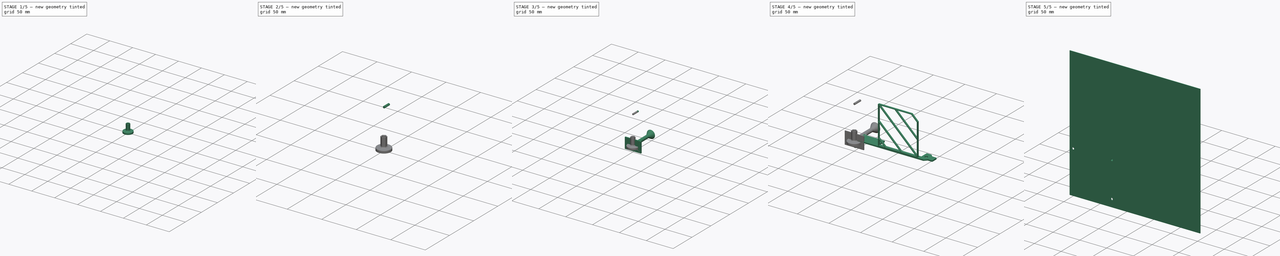
[diagram: build sequence overview — one tinted view per stage of 5, left to right]
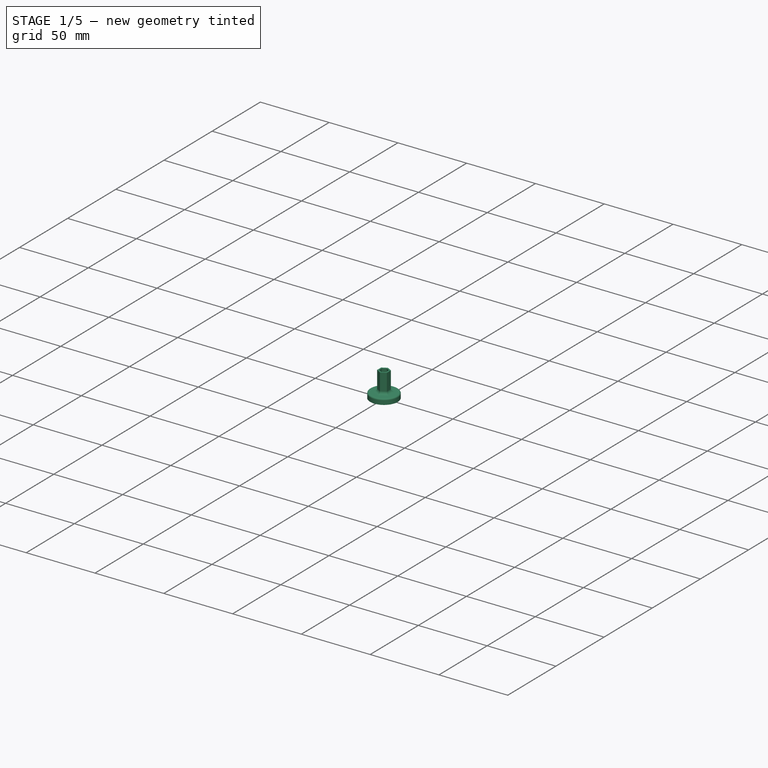
[diagram: stage 1 of 5 — iso view after this stage's code; geometry added in this stage tinted green]
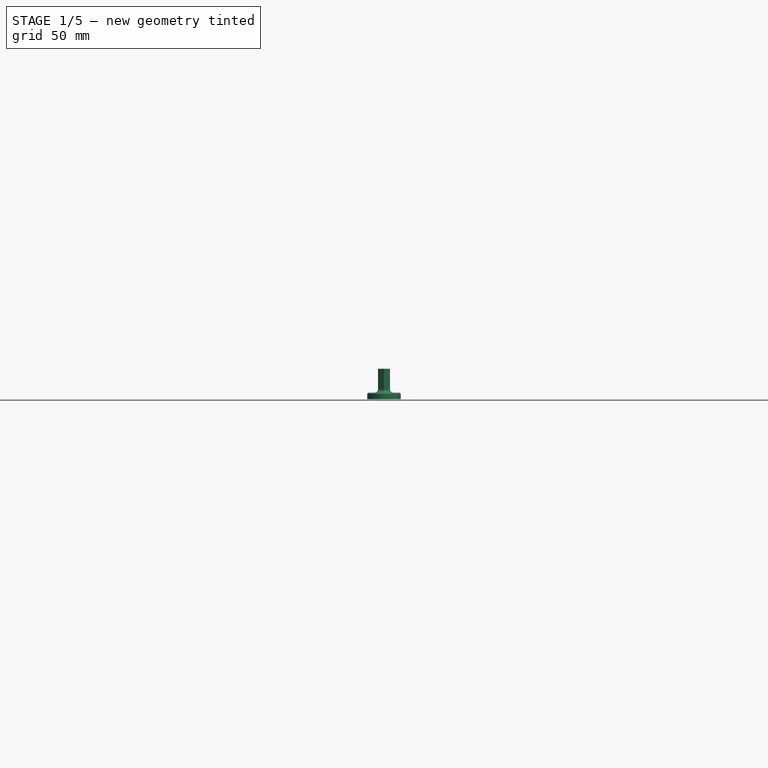
[diagram: stage 1 of 5 — front view after this stage's code; geometry added in this stage tinted green]
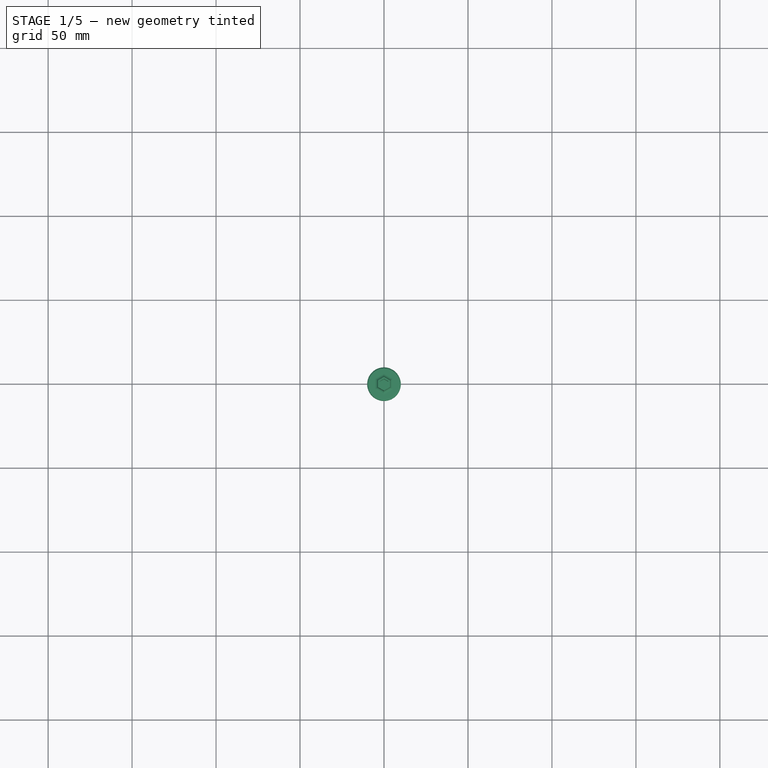
[diagram: stage 1 of 5 — top view after this stage's code; geometry added in this stage tinted green]
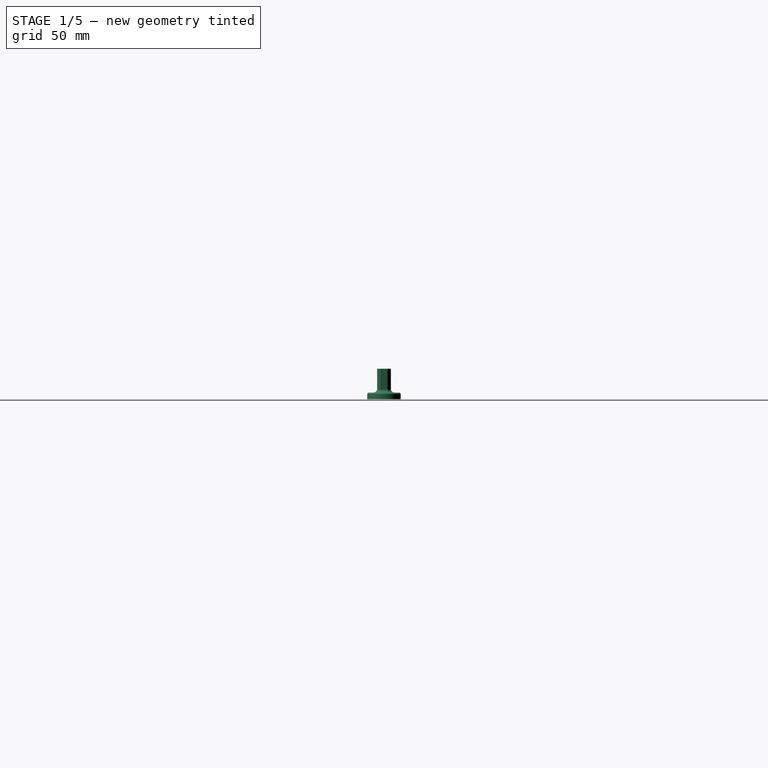
[diagram: stage 1 of 5 — right view after this stage's code; geometry added in this stage tinted green]
FCSTD DOCUMENT  (FreeCAD 0.17R13541 (Git))
Label: test118_gpumount
License: All rights reserved
LicenseURL: http://en.wikipedia.org/wiki/All_rights_reserved
objects: Sketcher::SketchObject×18, PartDesign::Pad×10, PartDesign::Body×5, PartDesign::Fillet×5, PartDesign::Pocket×3, Part::FeaturePython×2, PartDesign::Plane×1, Part::Part2DObjectPython×1, PartDesign::Revolution×1, PartDesign::Chamfer×1
note: 61 computed .brp shape members not serialized (recipe doc carries the construction recipe); baked Part::Feature solids carry a one-line shape summary decoded from their .brp

FEATURE [Sketcher::SketchObject] Sketch015
  MapMode = 5
  Support = -> [XY_Plane004]
  sketch-geometry (1):
    g0: Circle CenterX=0 CenterY=0 CenterZ=0 NormalX=0 NormalY=0 NormalZ=1 AngleXU=0 Radius=10
  constraints (2):
    c: Coincident(g0,g-1)
    c: Radius(g0) = 10
FEATURE [PartDesign::Pad] Pad008
  Length = 4
  Length2 = 100
  Profile = -> Sketch015
  Reversed = true
  Type = 0
FEATURE [Sketcher::SketchObject] Sketch016
  MapMode = 5
  Support = -> [XY_Plane004]
  sketch-geometry (14):
    g0: LineSegment StartX=2.55 StartY=-1.47224 StartZ=0 EndX=2.55 EndY=1.47224 EndZ=0
    g1: LineSegment StartX=2.55 StartY=1.47224 StartZ=0 EndX=0 EndY=2.94449 EndZ=0
    g2: LineSegment StartX=0 StartY=2.94449 StartZ=0 EndX=-2.55 EndY=1.47224 EndZ=0
    g3: LineSegment StartX=-2.55 StartY=1.47224 StartZ=0 EndX=-2.55 EndY=-1.47224 EndZ=0
    g4: LineSegment StartX=-2.55 StartY=-1.47224 StartZ=0 EndX=0 EndY=-2.94449 EndZ=0
    g5: LineSegment StartX=0 StartY=-2.94449 StartZ=0 EndX=2.55 EndY=-1.47224 EndZ=0
    g6: Circle [constr] CenterX=0 CenterY=0 CenterZ=0 NormalX=0 NormalY=0 NormalZ=1 AngleXU=0 Radius=2.94449
    g7: LineSegment StartX=3.55 StartY=-2.04959 StartZ=0 EndX=3.55 EndY=2.04959 EndZ=0
    g8: LineSegment StartX=3.55 StartY=2.04959 StartZ=0 EndX=0 EndY=4.09919 EndZ=0
    g9: LineSegment StartX=0 StartY=4.09919 StartZ=0 EndX=-3.55 EndY=2.04959 EndZ=0
    g10: LineSegment StartX=-3.55 StartY=2.04959 StartZ=0 EndX=-3.55 EndY=-2.04959 EndZ=0
    g11: LineSegment StartX=-3.55 StartY=-2.04959 StartZ=0 EndX=0 EndY=-4.09919 EndZ=0
    g12: LineSegment StartX=0 StartY=-4.09919 StartZ=0 EndX=3.55 EndY=-2.04959 EndZ=0
    g13: Circle [constr] CenterX=0 CenterY=0 CenterZ=0 NormalX=0 NormalY=0 NormalZ=1 AngleXU=0 Radius=4.09919
  constraints (32):
    c: Coincident(g0,g1)
    c: Coincident(g1,g2)
    c: Coincident(g2,g3)
    c: Coincident(g3,g4)
    c: Coincident(g4,g5)
    c: Coincident(g5,g0)
    c: Equal(g0, g1-g5) x5
    c: PointOnObject(g0,g6)
    c: PointOnObject(g1,g6)
    c: PointOnObject(g2,g6)
    c: PointOnObject(g3,g6)
    c: PointOnObject(g4,g6)
    c: PointOnObject(g5,g6)
    c: Coincident(g6,g-1)
    c: Coincident(g7,g8)
    c: Coincident(g8,g9)
    c: Coincident(g9,g10)
    c: Coincident(g10,g11)
    c: Coincident(g11,g12)
    c: Coincident(g12,g7)
    c: Equal(g7, g8-g12) x5
    c: PointOnObject(g7,g13)
    c: PointOnObject(g8,g13)
    c: PointOnObject(g9,g13)
    c: PointOnObject(g10,g13)
    c: PointOnObject(g11,g13)
    c: PointOnObject(g12,g13)
    c: Coincident(g13,g-1)
    c: PointOnObject(g11,g-2)
    c: PointOnObject(g4,g-2)
    c: Distance(g4,g12) = 1
    c: Distance(g1,g4) = 5.1
FEATURE [PartDesign::Pad] Pad009
  BaseFeature = -> Pad008
  Length = 14.2
  Length2 = 100
  Profile = -> Sketch016
  Type = 0
FEATURE [PartDesign::Fillet] Fillet002
  Base = -> Pad009 [Edge8,Edge9,Edge4,Edge5,Edge6,Edge7]
  BaseFeature = -> Pad009
  Radius = 2
FEATURE [PartDesign::Fillet] Fillet003
  Base = -> Fillet002 [Edge7]
  BaseFeature = -> Fillet002
  Radius = 1
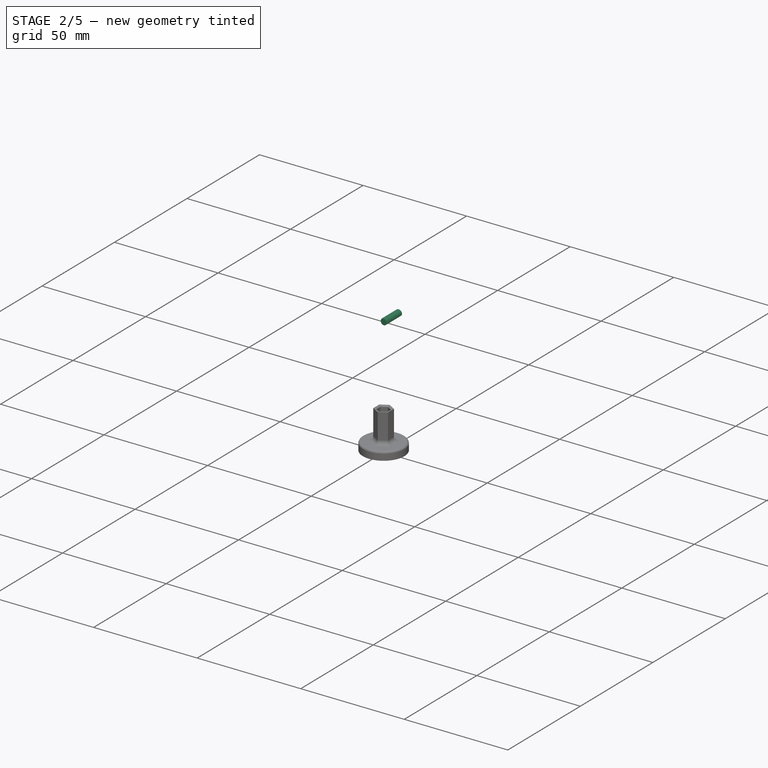
[diagram: stage 2 of 5 — iso view after this stage's code; geometry added in this stage tinted green]
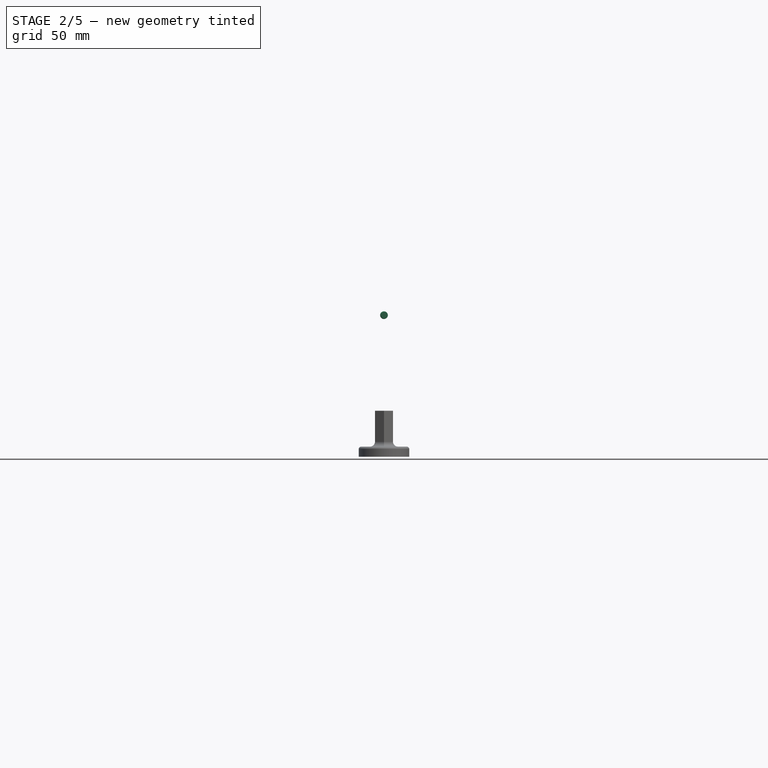
[diagram: stage 2 of 5 — front view after this stage's code; geometry added in this stage tinted green]
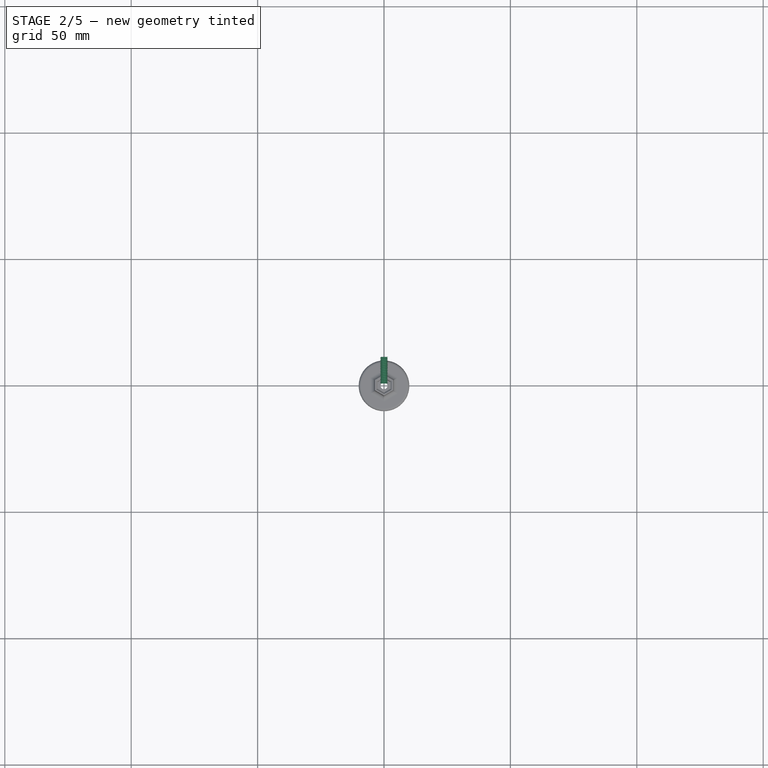
[diagram: stage 2 of 5 — top view after this stage's code; geometry added in this stage tinted green]
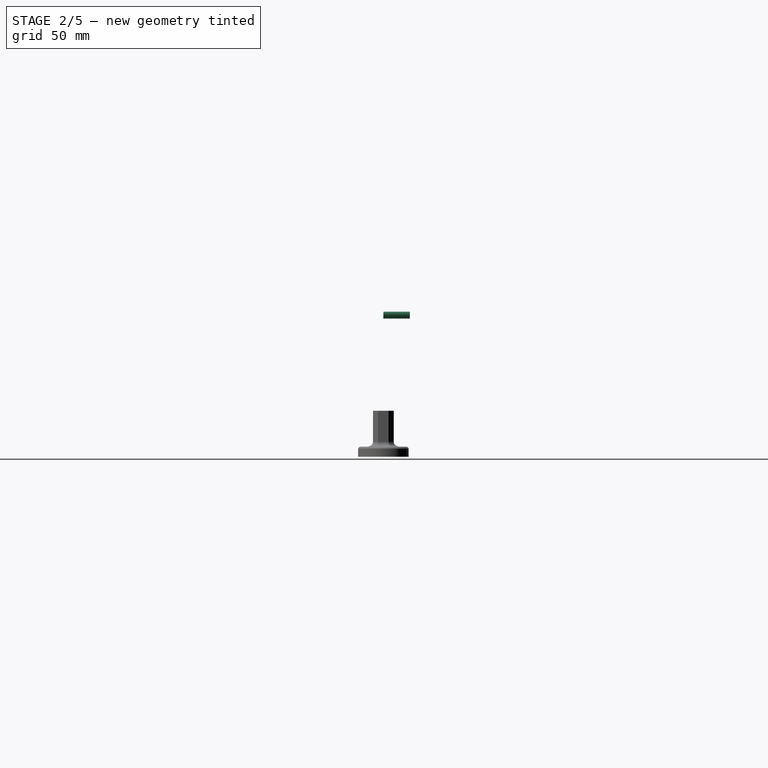
[diagram: stage 2 of 5 — right view after this stage's code; geometry added in this stage tinted green]
FEATURE [PartDesign::Body] Body003
  Group = -> [Sketch013,Revolution,Sketch014,Pad007,Fillet,Fillet001]
  Origin = -> Origin003
  Tip = -> Fillet001
FEATURE [Part::FeaturePython] ScrewTap  label="M3x10.0-ScrewTap"  # Fasteners workbench fastener (typed FeaturePython)
  Placement = pos=(0,0,52) rot=(1,0,0;1.5708rad)
  diameter = 4
  invert = false
  length = 10
  matchOuter = false
  offset = 0
  thread = true
FEATURE [PartDesign::Chamfer] Chamfer
  Base = -> Fillet003 [Edge36,Edge41,Edge40,Edge39,Edge38,Edge37]
  BaseFeature = -> Fillet003
  Size = 0.5
FEATURE [Sketcher::SketchObject] Sketch017
  MapMode = 5
  Support = -> [XY_Plane004]
  sketch-geometry (1):
    g0: Circle CenterX=0 CenterY=0 CenterZ=0 NormalX=0 NormalY=0 NormalZ=1 AngleXU=0 Radius=1.35
  constraints (2):
    c: Coincident(g0,g-1)
    c: Radius(g0) = 1.35
FEATURE [Sketcher::SketchObject] Sketch018
  MapMode = 5
  Placement = pos=(0,0,-4) rot=(1,0,0;3.14159rad)
  Support = -> [Chamfer]
  sketch-geometry (1):
    g0: Circle CenterX=0 CenterY=0 CenterZ=0 NormalX=0 NormalY=0 NormalZ=1 AngleXU=0 Radius=3
  constraints (2):
    c: Coincident(g0,g-1)
    c: Radius(g0) = 3
FEATURE [PartDesign::Pocket] Pocket001
  BaseFeature = -> Chamfer
  Length = 2.5
  Length2 = 100
  Profile = -> Sketch018
  Type = 0
FEATURE [PartDesign::Pocket] Pocket002
  BaseFeature = -> Pocket001
  Length = 5
  Length2 = 100
  Profile = -> Sketch017
  Type = 1
FEATURE [PartDesign::Fillet] Fillet004
  Base = -> Pocket002 [Edge67]
  BaseFeature = -> Pocket002
  Radius = 1
FEATURE [PartDesign::Body] Body004
  Group = -> [Sketch015,Pad008,Sketch016,Pad009,Fillet002,Fillet003,Chamfer,Sketch017,Sketch018,Pocket001,Pocket002,Fillet004]
  Origin = -> Origin004
  Tip = -> Fillet004
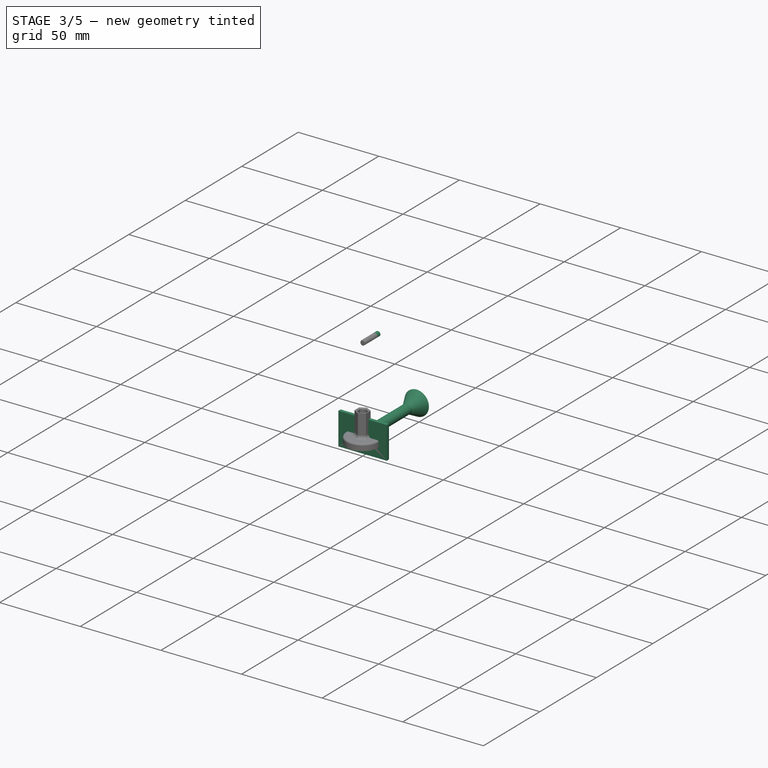
[diagram: stage 3 of 5 — iso view after this stage's code; geometry added in this stage tinted green]
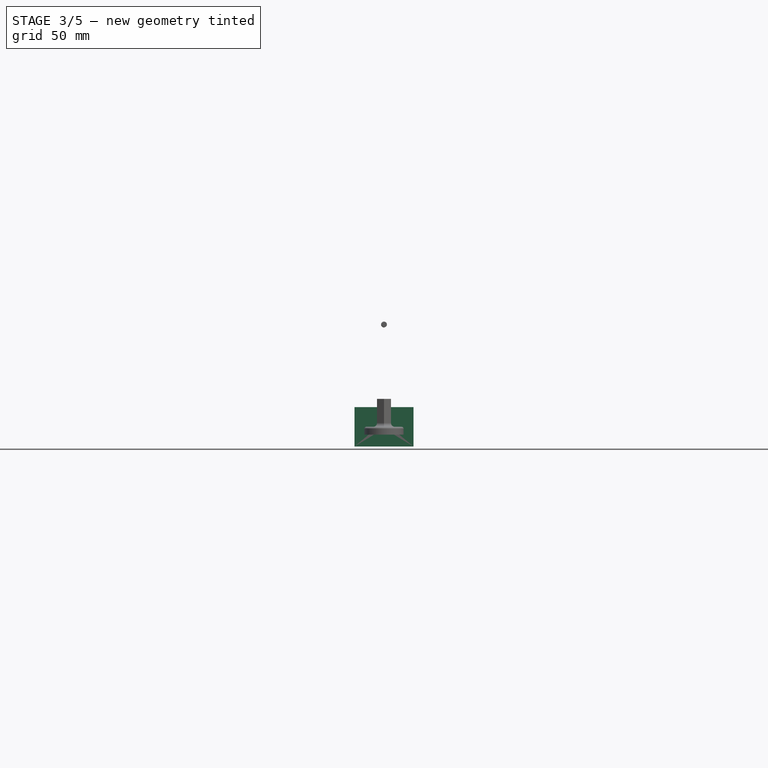
[diagram: stage 3 of 5 — front view after this stage's code; geometry added in this stage tinted green]
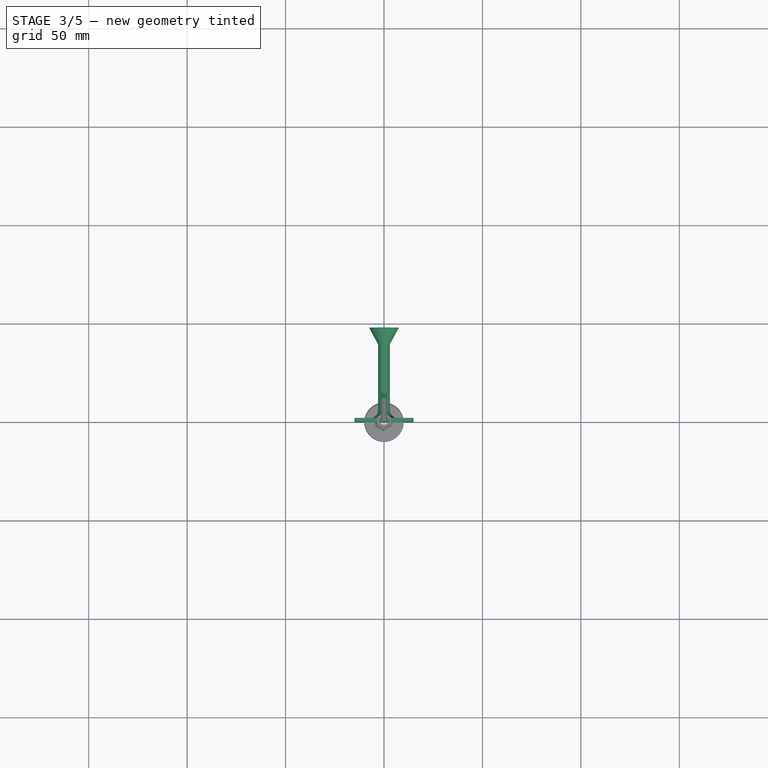
[diagram: stage 3 of 5 — top view after this stage's code; geometry added in this stage tinted green]
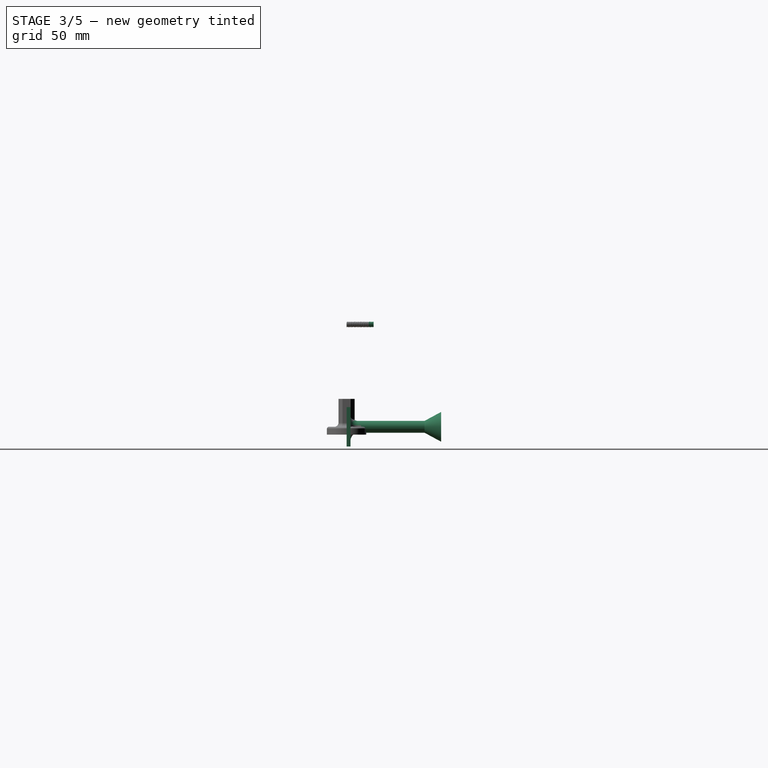
[diagram: stage 3 of 5 — right view after this stage's code; geometry added in this stage tinted green]
FEATURE [PartDesign::Body] Body001
  Group = -> [Sketch003,Sketch004,Sketch005,Pad002,Sketch006,Pad003,Sketch007,Pad004,Sketch012,Sketch011,Clone2D,Pocket,Pad006]
  Origin = -> Origin001
  Tip = -> Pad006
FEATURE [Sketcher::SketchObject] Sketch013
  MapMode = 5
  Support = -> [XY_Plane003]
  sketch-geometry (7):
    g0: LineSegment StartX=0 StartY=0 StartZ=0 EndX=3 EndY=0 EndZ=0
    g1: LineSegment StartX=3 StartY=0 StartZ=0 EndX=3 EndY=1.63337 EndZ=0
    g2: LineSegment StartX=3 StartY=1.63337 StartZ=0 EndX=3 EndY=7.40429 EndZ=0
    g3: LineSegment StartX=3 StartY=7.40429 StartZ=0 EndX=3 EndY=39.594 EndZ=0
    g4: LineSegment StartX=7.55905 StartY=48 StartZ=0 EndX=0 EndY=48 EndZ=0
    g5: LineSegment StartX=0 StartY=48 StartZ=0 EndX=0 EndY=0 EndZ=0
    g6: LineSegment StartX=7.55905 StartY=48 StartZ=0 EndX=3 EndY=39.594 EndZ=0
  constraints (16):
    c: Horizontal(g0)
    c: Coincident(g0,g-1)
    c: Coincident(g0,g1)
    c: Vertical(g1)
    c: Coincident(g1,g2)
    c: Coincident(g2,g3)
    c: Vertical(g3)
    c: Horizontal(g4)
    c: Coincident(g4,g5)
    c: Coincident(g5,g-1)
    c: Vertical(g5)
    c: Distance(g5) = 48
    c: Coincident(g3,g6)
    c: Coincident(g4,g6)
    c: DistanceX(g2,g0) = 0
    c: Distance(g0) = 3
FEATURE [PartDesign::Revolution] Revolution
  Angle = 360
  Axis = (0,1,0)
  Base = (0,0,0)
  Profile = -> Sketch013
  ReferenceAxis = -> Sketch013 [V_Axis]
  Reversed = true
FEATURE [Sketcher::SketchObject] Sketch014
  MapMode = 5
  Placement = pos=(0,0,0) rot=(1,0,0;1.5708rad)
  Support = -> [Revolution]
  sketch-geometry (4):
    g0: LineSegment StartX=-15 StartY=10 StartZ=0 EndX=15 EndY=10 EndZ=0
    g1: LineSegment StartX=15 StartY=10 StartZ=0 EndX=15 EndY=-10 EndZ=0
    g2: LineSegment StartX=15 StartY=-10 StartZ=0 EndX=-15 EndY=-10 EndZ=0
    g3: LineSegment StartX=-15 StartY=-10 StartZ=0 EndX=-15 EndY=10 EndZ=0
  constraints (11):
    c: Coincident(g0,g1)
    c: Coincident(g1,g2)
    c: Coincident(g2,g3)
    c: Coincident(g3,g0)
    c: Horizontal(g0)
    c: Horizontal(g2)
    c: Vertical(g1)
    c: Vertical(g3)
    c: Symmetric(g2,g0,g-1)
    c: Distance(g2) = 30
    c: Distance(g1) = 20
FEATURE [PartDesign::Pad] Pad007
  BaseFeature = -> Revolution
  Length = 2
  Length2 = 100
  Profile = -> Sketch014
  Reversed = true
  Type = 0
FEATURE [PartDesign::Fillet] Fillet
  Base = -> Pad007 [Edge6]
  BaseFeature = -> Pad007
  Radius = 4
FEATURE [Part::FeaturePython] Clone  label="M3x10.0-ScrewTap001"  # Draft clone (typed FeaturePython)
  AttacherType = Attacher::AttachEngine3D
  Fuse = false
  Objects = -> [ScrewTap]
  Placement = pos=(0,0,52) rot=(1,0,0;1.5708rad)
  Scale = (0.98,0.98,1.31)
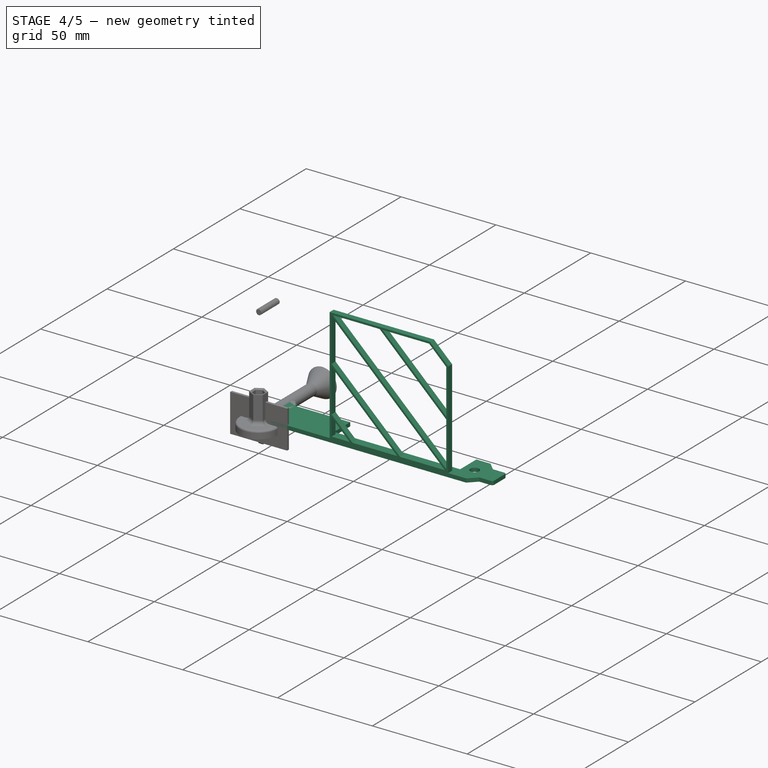
[diagram: stage 4 of 5 — iso view after this stage's code; geometry added in this stage tinted green]
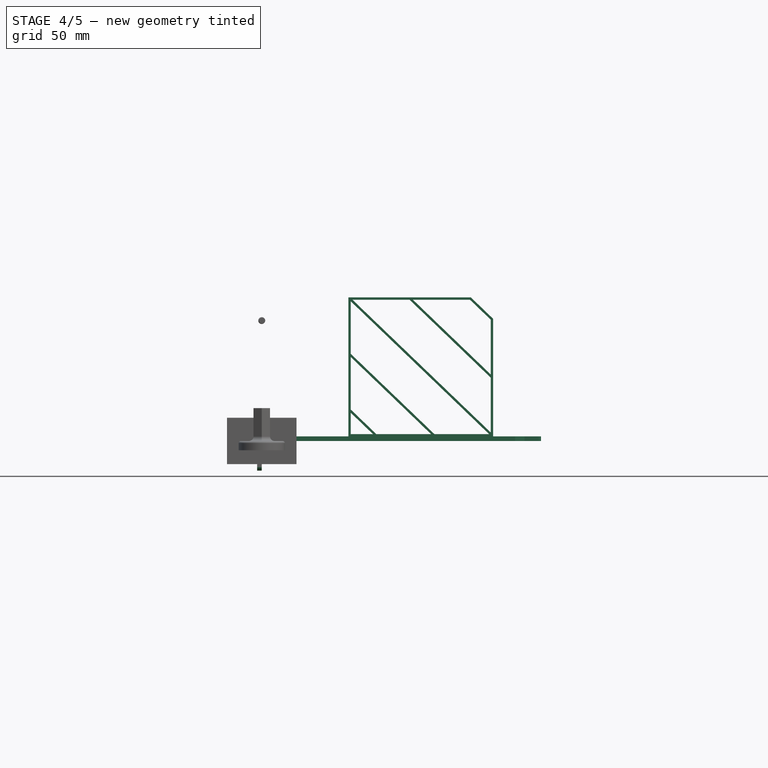
[diagram: stage 4 of 5 — front view after this stage's code; geometry added in this stage tinted green]
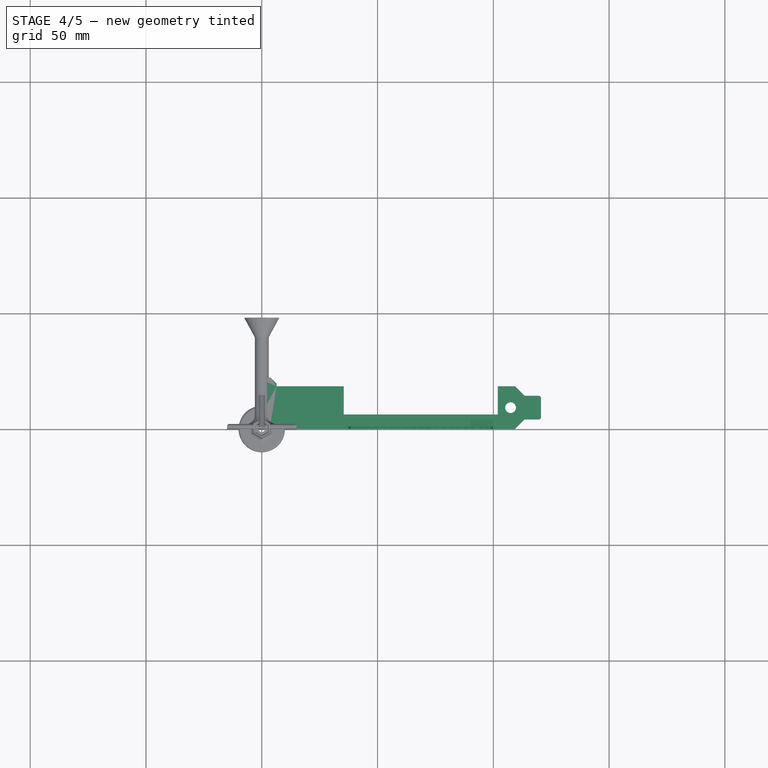
[diagram: stage 4 of 5 — top view after this stage's code; geometry added in this stage tinted green]
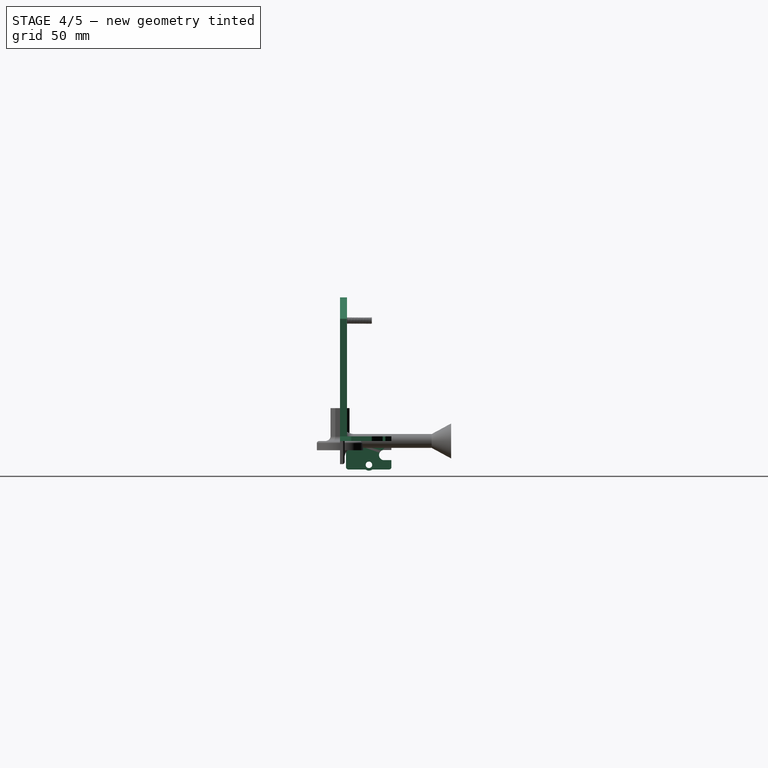
[diagram: stage 4 of 5 — right view after this stage's code; geometry added in this stage tinted green]
FEATURE [PartDesign::Body] Body
  Group = -> [Sketch001,Pad,Sketch,Sketch002,Pad001]
  Origin = -> Origin
  Tip = -> Pad001
FEATURE [Sketcher::SketchObject] Sketch003
  MapMode = 5
  Support = -> [XY_Plane001]
  sketch-geometry (25):
    g0: LineSegment StartX=0 StartY=22.2 StartZ=0 EndX=3.8 EndY=22.2 EndZ=0
    g1: LineSegment StartX=6.4 StartY=19.6 StartZ=0 EndX=6.4 EndY=18.4 EndZ=0
    g2: LineSegment StartX=6.4 StartY=18.4 StartZ=0 EndX=109.4 EndY=18.4 EndZ=0
    g3: LineSegment StartX=109.4 StartY=18.4 StartZ=0 EndX=113.475 EndY=14.325 EndZ=0
    g4: LineSegment StartX=113.475 StartY=14.325 StartZ=0 EndX=120.575 EndY=14.325 EndZ=0
    g5: LineSegment StartX=120.575 StartY=14.325 StartZ=0 EndX=120.575 EndY=4.075 EndZ=0
    g6: LineSegment StartX=120.575 StartY=4.075 StartZ=0 EndX=113.475 EndY=4.075 EndZ=0
    g7: LineSegment StartX=113.475 StartY=4.075 StartZ=0 EndX=109.4 EndY=0 EndZ=0
    g8: LineSegment StartX=109.4 StartY=0 StartZ=0 EndX=6.4 EndY=0 EndZ=0
    g9: LineSegment StartX=6.4 StartY=0 StartZ=0 EndX=3.8 EndY=2.6 EndZ=0
    g10: LineSegment StartX=3.8 StartY=2.6 StartZ=0 EndX=0 EndY=2.6 EndZ=0
    g11: LineSegment StartX=0 StartY=2.6 StartZ=0 EndX=0 EndY=22.2 EndZ=0
    g12: LineSegment StartX=3.8 StartY=22.2 StartZ=0 EndX=6.4 EndY=19.6 EndZ=0
    g13: LineSegment [constr] StartX=0 StartY=9.2 StartZ=0 EndX=120.575 EndY=9.2 EndZ=0
    g14: LineSegment [constr] StartX=3.8 StartY=22.2 StartZ=0 EndX=3.8 EndY=2.6 EndZ=0
    g15: Circle CenterX=107.45 CenterY=9.2 CenterZ=0 NormalX=0 NormalY=0 NormalZ=1 AngleXU=0 Radius=2.425
    g16: GeomPoint X=109.875 Y=9.2 Z=0
    g17: LineSegment StartX=37.4 StartY=18.4 StartZ=0 EndX=99.9 EndY=18.4 EndZ=0
    g18: LineSegment StartX=99.9 StartY=18.4 StartZ=0 EndX=99.9 EndY=8.2 EndZ=0
    g19: LineSegment StartX=99.9 StartY=8.2 StartZ=0 EndX=37.4 EndY=8.2 EndZ=0
    g20: LineSegment StartX=37.4 StartY=8.2 StartZ=0 EndX=37.4 EndY=18.4 EndZ=0
    g21: LineSegment StartX=100.9 StartY=18.4 StartZ=0 EndX=36.4 EndY=18.4 EndZ=0
    g22: LineSegment StartX=36.4 StartY=18.4 StartZ=0 EndX=36.4 EndY=15.4 EndZ=0
    g23: LineSegment StartX=36.4 StartY=15.4 StartZ=0 EndX=100.9 EndY=15.4 EndZ=0
    g24: LineSegment StartX=100.9 StartY=15.4 StartZ=0 EndX=100.9 EndY=18.4 EndZ=0
  constraints (72):
    c: PointOnObject(g0,g-2)
    c: Horizontal(g0)
    c: Vertical(g1)
    c: Coincident(g1,g2)
    c: Horizontal(g2)
    c: Coincident(g2,g3)
    c: Coincident(g3,g4)
    c: Horizontal(g4)
    c: Coincident(g4,g5)
    c: Vertical(g5)
    c: Coincident(g5,g6)
    c: Horizontal(g6)
    c: Coincident(g6,g7)
    c: PointOnObject(g7,g-1)
    c: Coincident(g7,g8)
    c: PointOnObject(g8,g-1)
    c: Coincident(g8,g9)
    c: Coincident(g9,g10)
    c: PointOnObject(g10,g-2)
    c: Horizontal(g10)
    c: Coincident(g10,g11)
    c: Coincident(g11,g0)
    c: Coincident(g12,g0)
    c: Coincident(g12,g1)
    c: Horizontal(g13)
    c: Symmetric(g7,g2,g13)
    c: Symmetric(g6,g3,g13)
    c: Symmetric(g8,g1,g13)
    c: Distance(g5) = 10.25
    c: DistanceY(g7,g2) = 18.4
    c: Distance(g6) = 7.1
    c: Angle(g3,g-1) = 0.785398
    c: Distance(g2) = 103
    c: Angle(g9,g-1) = 0.785398
    c: Parallel(g12,g9)
    c: DistanceY(g-1,g9) = 2.6
    c: DistanceX(g-1,g9) = 3.8
    c: DistanceY(g1,g0) = 3.8
    c: Coincident(g14,g0)
    c: Vertical(g14)
    c: Coincident(g14,g9)
    c: PointOnObject(g13,g-2)
    c: PointOnObject(g13,g5)
    c: PointOnObject(g15,g13)
    c: Radius(g15) = 2.425
    c: PointOnObject(g16,g15)
    c: PointOnObject(g16,g13)
    c: DistanceX(g16,g13) = 10.7
    c: Coincident(g17,g18)
    c: Coincident(g18,g19)
    c: Coincident(g19,g20)
    c: Coincident(g20,g17)
    c: Horizontal(g17)
    c: Horizontal(g19)
    c: Vertical(g18)
    c: Vertical(g20)
    c: PointOnObject(g17,g2)
    c: Distance(g2,g17) = 9.5
    c: Distance(g19) = 62.5
    c: Distance(g20) = 10.2
    c: Coincident(g21,g22)
    c: Coincident(g22,g23)
    c: Coincident(g23,g24)
    c: Coincident(g24,g21)
    c: Horizontal(g21)
    c: Horizontal(g23)
    c: Vertical(g22)
    c: Vertical(g24)
    c: PointOnObject(g21,g2)
    c: DistanceX(g17,g21) = 1
    c: DistanceY(g23,g21) = 3
    c: DistanceX(g21,g17) = 1
FEATURE [Sketcher::SketchObject] Sketch004
  ExternalGeometry = -> [Sketch003]
  MapMode = 5
  Placement = pos=(0,0,0) rot=(-0.57735,0.57735,0.57735;4.18879rad)
  Support = -> [YZ_Plane001]
  expr: Constraints[36] = 5.3499999999999996 - 4.4000000000000004 / 2
  sketch-geometry (13):
    g0: LineSegment [constr] StartX=-22.2 StartY=0 StartZ=0 EndX=-22.2 EndY=-12.3 EndZ=0
    g1: LineSegment [constr] StartX=-22.2 StartY=-12.3 StartZ=0 EndX=-2.6 EndY=-12.3 EndZ=0
    g2: LineSegment StartX=-2.6 StartY=-12.3 StartZ=0 EndX=-2.6 EndY=0 EndZ=0
    g3: LineSegment StartX=-22.2 StartY=0 StartZ=0 EndX=-22.2 EndY=-3.9 EndZ=0
    g4: LineSegment StartX=-22.2 StartY=-3.9 StartZ=0 EndX=-19.05 EndY=-3.9 EndZ=0
    g5: LineSegment StartX=-19.05 StartY=-8.3 StartZ=0 EndX=-22.2 EndY=-8.3 EndZ=0
    g6: LineSegment StartX=-22.2 StartY=-8.3 StartZ=0 EndX=-22.2 EndY=-12.3 EndZ=0
    g7: LineSegment StartX=-22.2 StartY=-12.3 StartZ=0 EndX=-14 EndY=-12.3 EndZ=0
    g8: LineSegment StartX=-14 StartY=-12.3 StartZ=0 EndX=-14 EndY=-8.3 EndZ=0
    g9: LineSegment StartX=-14 StartY=-8.3 StartZ=0 EndX=-11 EndY=-8.3 EndZ=0
    g10: LineSegment StartX=-11 StartY=-8.3 StartZ=0 EndX=-11 EndY=-12.3 EndZ=0
    g11: LineSegment StartX=-11 StartY=-12.3 StartZ=0 EndX=-2.6 EndY=-12.3 EndZ=0
    g12: ArcOfCircle CenterX=-19.05 CenterY=-6.1 CenterZ=0 NormalX=0 NormalY=0 NormalZ=1 AngleXU=0 Radius=2.2 StartAngle=4.71239 EndAngle=7.85398
  constraints (37):
    c: Coincident(g0,g-4)
    c: Vertical(g0)
    c: Coincident(g0,g1)
    c: Horizontal(g1)
    c: Coincident(g1,g2)
    c: Coincident(g2,g-3)
    c: Vertical(g2)
    c: Distance(g0) = 12.3
    c: PointOnObject(g3,g0)
    c: Coincident(g3,g4)
    c: Horizontal(g4)
    c: PointOnObject(g5,g0)
    c: Horizontal(g5)
    c: Coincident(g5,g6)
    c: Coincident(g6,g0)
    c: Coincident(g6,g7)
    c: PointOnObject(g7,g1)
    c: Coincident(g7,g8)
    c: Vertical(g8)
    c: Coincident(g8,g9)
    c: Horizontal(g9)
    c: Coincident(g9,g10)
    c: PointOnObject(g10,g1)
    c: Vertical(g10)
    c: Coincident(g10,g11)
    c: Coincident(g11,g1)
    c: Coincident(g12,g4)
    c: Coincident(g12,g5)
    c: Symmetric(g4,g5,g12)
    c: Distance(g3,g5) = 4.4
    c: Distance(g3) = 3.9
    c: Coincident(g3,g0)
    c: Distance(g9) = 3
    c: Distance(g8) = 4
    c: Distance(g11) = 8.4
    c: Equal(g5,g4)
    c: Distance(g12,g0) = 3.15
FEATURE [Sketcher::SketchObject] Sketch005
  ExternalGeometry = -> [Sketch003]
  MapMode = 5
  Support = -> [XY_Plane001]
  sketch-geometry (24):
    g0: LineSegment StartX=109.4 StartY=18.4 StartZ=0 EndX=113.475 EndY=14.325 EndZ=0
    g1: LineSegment StartX=113.475 StartY=14.325 StartZ=0 EndX=119.575 EndY=14.325 EndZ=0
    g2: LineSegment StartX=120.575 StartY=13.325 StartZ=0 EndX=120.575 EndY=5.075 EndZ=0
    g3: LineSegment StartX=119.575 StartY=4.075 StartZ=0 EndX=113.475 EndY=4.075 EndZ=0
    g4: LineSegment StartX=113.475 StartY=4.075 StartZ=0 EndX=109.4 EndY=0 EndZ=0
    g5: LineSegment StartX=109.4 StartY=0 StartZ=0 EndX=6.4 EndY=0 EndZ=0
    g6: LineSegment StartX=6.4 StartY=0 StartZ=0 EndX=3.8 EndY=2.6 EndZ=0
    g7: LineSegment StartX=3.8 StartY=2.6 StartZ=0 EndX=0 EndY=2.6 EndZ=0
    g8: LineSegment StartX=0 StartY=2.6 StartZ=0 EndX=-2 EndY=2.6 EndZ=0
    g9: LineSegment StartX=-2 StartY=2.6 StartZ=0 EndX=-2 EndY=22.2 EndZ=0
    g10: LineSegment StartX=-2 StartY=22.2 StartZ=0 EndX=0 EndY=22.2 EndZ=0
    g11: LineSegment StartX=0 StartY=22.2 StartZ=0 EndX=3.8 EndY=22.2 EndZ=0
    g12: LineSegment StartX=3.8 StartY=22.2 StartZ=0 EndX=6.4 EndY=19.6 EndZ=0
    g13: LineSegment StartX=6.4 StartY=19.6 StartZ=0 EndX=6.4 EndY=18.4 EndZ=0
    g14: Circle CenterX=107.45 CenterY=9.2 CenterZ=0 NormalX=0 NormalY=0 NormalZ=1 AngleXU=0 Radius=2.325
    g15: LineSegment [constr] StartX=107.45 StartY=9.2 StartZ=0 EndX=109.775 EndY=9.2 EndZ=0
    g16: GeomPoint X=109.875 Y=9.2 Z=0
    g17: LineSegment StartX=6.4 StartY=18.4 StartZ=0 EndX=35.4 EndY=18.4 EndZ=0
    g18: LineSegment StartX=35.4 StartY=18.4 StartZ=0 EndX=35.4 EndY=6.2 EndZ=0
    g19: LineSegment StartX=35.4 StartY=6.2 StartZ=0 EndX=101.9 EndY=6.2 EndZ=0
    g20: LineSegment StartX=101.9 StartY=6.2 StartZ=0 EndX=101.9 EndY=18.4 EndZ=0
    g21: LineSegment StartX=101.9 StartY=18.4 StartZ=0 EndX=109.4 EndY=18.4 EndZ=0
    g22: ArcOfCircle CenterX=119.575 CenterY=5.075 CenterZ=0 NormalX=0 NormalY=0 NormalZ=1 AngleXU=0 Radius=1 StartAngle=4.71239 EndAngle=6.28319
    g23: ArcOfCircle CenterX=119.575 CenterY=13.325 CenterZ=0 NormalX=0 NormalY=0 NormalZ=1 AngleXU=0 Radius=1 StartAngle=0 EndAngle=1.5708
  constraints (57):
    c: Coincident(g-3,g0)
    c: Coincident(g0,g-6)
    c: Coincident(g0,g1)
    c: Coincident(g3,g-7)
    c: Coincident(g3,g4)
    c: Coincident(g4,g-9)
    c: Coincident(g5,g4)
    c: Coincident(g5,g-10)
    c: Coincident(g6,g5)
    c: Coincident(g6,g-11)
    c: Coincident(g7,g6)
    c: Coincident(g7,g-11)
    c: Horizontal(g8)
    c: Coincident(g8,g9)
    c: Vertical(g9)
    c: Coincident(g9,g10)
    c: Coincident(g10,g-13)
    c: Horizontal(g10)
    c: Coincident(g10,g11)
    c: Coincident(g11,g-13)
    c: Coincident(g11,g12)
    c: Coincident(g12,g-12)
    c: Coincident(g12,g13)
    c: Coincident(g13,g-3)
    c: Coincident(g8,g7)
    c: Distance(g8) = 2
    c: Coincident(g14,g-8)
    c: Coincident(g15,g14)
    c: PointOnObject(g15,g14)
    c: Horizontal(g15)
    c: PointOnObject(g16,g-8)
    c: PointOnObject(g16,g15)
    c: Distance(g15,g16) = 0.1
    c: Coincident(g13,g17)
    c: PointOnObject(g17,g-3)
    c: Coincident(g17,g18)
    c: Vertical(g18)
    c: Coincident(g18,g19)
    c: Horizontal(g19)
    c: Coincident(g19,g20)
    c: PointOnObject(g20,g-3)
    c: Vertical(g20)
    c: Coincident(g20,g21)
    c: Coincident(g21,g0)
    c: Distance(g-16,g18) = 1
    c: Distance(g-17,g19) = 2
    c: Distance(g-15,g20) = 1
    c: Tangent(g3,g22) = 1.5708
    c: Tangent(g2,g22) = 1.5708
    c: Tangent(g1,g23) = 1.5708
    c: Tangent(g2,g23) = 1.5708
    c: Radius(g23) = 1
    c: Equal(g23,g22)
    c: PointOnObject(g2,g-19)
    c: PointOnObject(g1,g-6)
    c: PointOnObject(g22,g-19)
    c: PointOnObject(g3,g-7)
FEATURE [PartDesign::Pad] Pad002
  Length = 2
  Length2 = 100
  Profile = -> Sketch005
  Type = 0
FEATURE [Sketcher::SketchObject] Sketch006
  ExternalGeometry = -> [Sketch004]
  MapMode = 5
  Placement = pos=(0,0,0) rot=(-0.57735,0.57735,0.57735;4.18879rad)
  Support = -> [YZ_Plane001]
  sketch-geometry (15):
    g0: LineSegment StartX=-2.6 StartY=0 StartZ=0 EndX=-2.6 EndY=-11.3 EndZ=0
    g1: LineSegment StartX=-22.2 StartY=-11.3 StartZ=0 EndX=-22.2 EndY=-8.3 EndZ=0
    g2: LineSegment StartX=-22.2 StartY=-8.3 StartZ=0 EndX=-19.05 EndY=-8.3 EndZ=0
    g3: LineSegment StartX=-19.05 StartY=-3.9 StartZ=0 EndX=-22.2 EndY=-3.9 EndZ=0
    g4: LineSegment StartX=-22.2 StartY=-3.9 StartZ=0 EndX=-22.2 EndY=0 EndZ=0
    g5: ArcOfCircle CenterX=-19.05 CenterY=-6.1 CenterZ=0 NormalX=0 NormalY=0 NormalZ=1 AngleXU=0 Radius=2.2 StartAngle=4.71239 EndAngle=7.85398
    g6: ArcOfCircle CenterX=-3.6 CenterY=-11.3 CenterZ=0 NormalX=0 NormalY=0 NormalZ=1 AngleXU=0 Radius=1 StartAngle=4.71239 EndAngle=6.28319
    g7: ArcOfCircle CenterX=-21.2 CenterY=-11.3 CenterZ=0 NormalX=0 NormalY=0 NormalZ=1 AngleXU=0 Radius=1 StartAngle=3.14159 EndAngle=4.71239
    g8: LineSegment StartX=-2.6 StartY=0 StartZ=0 EndX=-22.2 EndY=0 EndZ=0
    g9: Circle CenterX=-12.5 CenterY=-10.3 CenterZ=0 NormalX=0 NormalY=0 NormalZ=1 AngleXU=0 Radius=1.4
    g10: LineSegment [constr] StartX=-14 StartY=-12.3 StartZ=0 EndX=-11 EndY=-8.3 EndZ=0
    g11: LineSegment [constr] StartX=-11 StartY=-12.3 StartZ=0 EndX=-14 EndY=-8.3 EndZ=0
    g12: LineSegment StartX=-3.6 StartY=-12.3 StartZ=0 EndX=-11 EndY=-12.3 EndZ=0
    g13: LineSegment StartX=-14 StartY=-12.3 StartZ=0 EndX=-21.2 EndY=-12.3 EndZ=0
    g14: ArcOfCircle CenterX=-12.5 CenterY=-10.3 CenterZ=0 NormalX=0 NormalY=0 NormalZ=1 AngleXU=0 Radius=2.5 StartAngle=4.06889 EndAngle=5.35589
  constraints (37):
    c: Coincident(g-13,g0)
    c: Coincident(g1,g-10)
    c: Coincident(g1,g2)
    c: Coincident(g2,g-9)
    c: Coincident(g3,g-12)
    c: Coincident(g3,g4)
    c: Coincident(g4,g-12)
    c: Coincident(g3,g-11)
    c: Coincident(g5,g-9)
    c: Coincident(g5,g3)
    c: Coincident(g5,g2)
    c: Tangent(g0,g6) = 1.5708
    c: Tangent(g1,g7) = 1.5708
    c: Equal(g7,g6)
    c: PointOnObject(g0,g-13)
    c: PointOnObject(g1,g-10)
    c: Radius(g6) = 1
    c: Coincident(g8,g0)
    c: Coincident(g8,g4)
    c: Coincident(g10,g-7)
    c: Coincident(g10,g-5)
    c: Coincident(g11,g-5)
    c: Coincident(g11,g-6)
    c: PointOnObject(g9,g11)
    c: PointOnObject(g9,g10)
    c: Radius(g9) = 1.4
    c: PointOnObject(g7,g-7)
    c: PointOnObject(g6,g-3)
    c: Tangent(g-7,g7)
    c: Tangent(g-3,g6)
    c: Coincident(g12,g6)
    c: Coincident(g12,g11)
    c: Coincident(g13,g10)
    c: Coincident(g13,g7)
    c: Coincident(g14,g11)
    c: Coincident(g14,g10)
    c: PointOnObject(g14,g11)
FEATURE [PartDesign::Pad] Pad003
  BaseFeature = -> Pad002
  Length = 2
  Length2 = 100
  Profile = -> Sketch006
  Refine = true
  Type = 0
FEATURE [Sketcher::SketchObject] Sketch007
  ExternalGeometry = -> [Sketch003]
  MapMode = 5
  Placement = pos=(0,0,2) rot=(0,0,1;0rad)
  Support = -> [Pad003]
  sketch-geometry (4):
    g0: LineSegment StartX=99.9 StartY=0 StartZ=0 EndX=37.4 EndY=0 EndZ=0
    g1: LineSegment StartX=37.4 StartY=0 StartZ=0 EndX=37.4 EndY=3 EndZ=0
    g2: LineSegment StartX=37.4 StartY=3 StartZ=0 EndX=99.9 EndY=3 EndZ=0
    g3: LineSegment StartX=99.9 StartY=3 StartZ=0 EndX=99.9 EndY=0 EndZ=0
  constraints (12):
    c: Coincident(g0,g1)
    c: Coincident(g1,g2)
    c: Coincident(g2,g3)
    c: Coincident(g3,g0)
    c: Horizontal(g0)
    c: Horizontal(g2)
    c: Vertical(g1)
    c: Vertical(g3)
    c: PointOnObject(g0,g-3)
    c: PointOnObject(g-4,g1)
    c: PointOnObject(g-4,g3)
    c: Distance(g3) = 3
FEATURE [PartDesign::Pad] Pad004
  BaseFeature = -> Pad003
  Length = 60
  Length2 = 100
  Profile = -> Sketch007
  Type = 0
FEATURE [PartDesign::Body] Body002
  Group = -> [DatumPlane,Sketch009,Sketch010,Pad005]
  Origin = -> Origin002
  Tip = -> Pad005
FEATURE [Part::Part2DObjectPython] Clone2D  label="Mobo (2D)"  # Draft 2D object (typed FeaturePython)
  Fuse = false
  Objects = -> [Sketch009]
  Placement = pos=(20,-33.6,0) rot=(0,0.707107,0.707107;3.14159rad)
  Scale = (1,1,1)
FEATURE [Sketcher::SketchObject] Sketch011
  ExternalGeometry = -> [Clone2D]
  MapMode = 5
  Placement = pos=(0,0,0) rot=(1,0,0;1.5708rad)
  Support = -> [XZ_Plane001]
  sketch-geometry (11):
    g0: Circle CenterX=98.9 CenterY=-6.03 CenterZ=0 NormalX=0 NormalY=0 NormalZ=1 AngleXU=0 Radius=1.7
    g1: Circle CenterX=26.51 CenterY=60.01 CenterZ=0 NormalX=0 NormalY=0 NormalZ=1 AngleXU=0 Radius=1.7
    g2: LineSegment StartX=95.9 StartY=-6.03 StartZ=0 EndX=95.9 EndY=54.01 EndZ=0
    g3: LineSegment StartX=92.9 StartY=57.01 StartZ=0 EndX=26.51 EndY=57.01 EndZ=0
    g4: LineSegment StartX=26.51 StartY=63.01 StartZ=0 EndX=98.9 EndY=63.01 EndZ=0
    g5: LineSegment StartX=101.9 StartY=60.01 StartZ=0 EndX=101.9 EndY=-6.03 EndZ=0
    g6: ArcOfCircle CenterX=98.9 CenterY=60.01 CenterZ=0 NormalX=0 NormalY=0 NormalZ=1 AngleXU=0 Radius=3 StartAngle=0 EndAngle=1.5708
    g7: ArcOfCircle CenterX=26.51 CenterY=60.01 CenterZ=0 NormalX=0 NormalY=0 NormalZ=1 AngleXU=0 Radius=3 StartAngle=1.5708 EndAngle=4.71239
    g8: ArcOfCircle CenterX=98.9 CenterY=-6.03 CenterZ=0 NormalX=0 NormalY=0 NormalZ=1 AngleXU=0 Radius=3 StartAngle=3.14159 EndAngle=6.28319
    g9: ArcOfCircle CenterX=92.9 CenterY=54.01 CenterZ=0 NormalX=0 NormalY=0 NormalZ=1 AngleXU=0 Radius=3 StartAngle=0 EndAngle=1.5708
    g10: Circle CenterX=98.9 CenterY=60.01 CenterZ=0 NormalX=0 NormalY=0 NormalZ=1 AngleXU=0 Radius=1.7
  constraints (28):
    c: Coincident(g0,g-5)
    c: Coincident(g1,g-3)
    c: Vertical(g2)
    c: Horizontal(g3)
    c: Horizontal(g4)
    c: Vertical(g5)
    c: Tangent(g5,g6) = 1.5708
    c: Tangent(g4,g6) = 1.5708
    c: Coincident(g7,g4)
    c: Coincident(g7,g3)
    c: Tangent(g4,g7)
    c: Coincident(g8,g0)
    c: Coincident(g8,g2)
    c: Coincident(g8,g5)
    c: Tangent(g2,g8)
    c: Tangent(g5,g8)
    c: Tangent(g2,g9) = -1.5708
    c: Tangent(g3,g9) = -1.5708
    c: Equal(g9,g7)
    c: Equal(g9,g8)
    c: Coincident(g1,g7)
    c: Tangent(g7,g3)
    c: Coincident(g10,g-4)
    c: Equal(g6,g7)
    c: Radius(g6) = 3
    c: Radius(g1) = 1.7
    c: Equal(g1,g10)
    c: Equal(g10,g0)
FEATURE [Sketcher::SketchObject] Sketch012
  ExternalGeometry = -> [Pad004,Sketch011]
  MapMode = 5
  Placement = pos=(0,0,0) rot=(1,0,0;1.5708rad)
  Support = -> [Pad004]
  sketch-geometry (27):
    g0: LineSegment [constr] StartX=38.4417 StartY=2.96 StartZ=0 EndX=98.9 EndY=2.96 EndZ=0
    g1: LineSegment [constr] StartX=98.9 StartY=2.96 StartZ=0 EndX=98.9 EndY=61 EndZ=0
    g2: LineSegment [constr] StartX=98.9 StartY=61 StartZ=0 EndX=38.4417 EndY=61 EndZ=0
    g3: LineSegment [constr] StartX=38.4417 StartY=61 StartZ=0 EndX=38.4417 EndY=2.96 EndZ=0
    g4: LineSegment [constr] StartX=99.9 StartY=2 StartZ=0 EndX=37.4 EndY=62 EndZ=0
    g5: LineSegment StartX=90.3 StartY=62 StartZ=0 EndX=99.9 EndY=52.784 EndZ=0
    g6: LineSegment StartX=99.9 StartY=52.784 StartZ=0 EndX=99.9 EndY=62 EndZ=0
    g7: LineSegment StartX=99.9 StartY=62 StartZ=0 EndX=90.3 EndY=62 EndZ=0
    g8: LineSegment StartX=98.9 StartY=52.3578 StartZ=0 EndX=89.8977 EndY=61 EndZ=0
    g9: LineSegment StartX=89.8977 StartY=61 StartZ=0 EndX=65.2527 EndY=61 EndZ=0
    g10: LineSegment StartX=65.2527 StartY=61 StartZ=0 EndX=98.9 EndY=28.6986 EndZ=0
    g11: LineSegment StartX=98.9 StartY=28.6986 StartZ=0 EndX=98.9 EndY=52.3578 EndZ=0
    g12: LineSegment StartX=39.1637 StartY=61 StartZ=0 EndX=98.9 EndY=3.65311 EndZ=0
    g13: LineSegment StartX=98.9 StartY=3.65311 StartZ=0 EndX=98.9 EndY=27.3123 EndZ=0
    g14: LineSegment StartX=98.9 StartY=27.3123 StartZ=0 EndX=63.8087 EndY=61 EndZ=0
    g15: LineSegment StartX=63.8087 StartY=61 StartZ=0 EndX=39.1637 EndY=61 EndZ=0
    g16: LineSegment StartX=98.178 StartY=2.96 StartZ=0 EndX=38.4417 EndY=60.3069 EndZ=0
    g17: LineSegment StartX=74.5538 StartY=2.96 StartZ=0 EndX=98.178 EndY=2.96 EndZ=0
    g18: LineSegment StartX=38.4417 StartY=37.6277 StartZ=0 EndX=74.5538 EndY=2.96 EndZ=0
    g19: LineSegment StartX=38.4417 StartY=60.3069 StartZ=0 EndX=38.4417 EndY=37.6277 EndZ=0
    g20: LineSegment StartX=73.1098 StartY=2.96 StartZ=0 EndX=38.4417 EndY=36.2414 EndZ=0
    g21: LineSegment StartX=49.4856 StartY=2.96 StartZ=0 EndX=73.1098 EndY=2.96 EndZ=0
    g22: LineSegment StartX=38.4417 StartY=13.5622 StartZ=0 EndX=49.4856 EndY=2.96 EndZ=0
    g23: LineSegment StartX=38.4417 StartY=36.2414 StartZ=0 EndX=38.4417 EndY=13.5622 EndZ=0
    g24: LineSegment StartX=38.4417 StartY=12.176 StartZ=0 EndX=48.0417 EndY=2.96 EndZ=0
    g25: LineSegment StartX=48.0417 StartY=2.96 StartZ=0 EndX=38.4417 EndY=2.96 EndZ=0
    g26: LineSegment StartX=38.4417 StartY=2.96 StartZ=0 EndX=38.4417 EndY=12.176 EndZ=0
  constraints (78):
    c: Coincident(g0,g1)
    c: Coincident(g1,g2)
    c: Coincident(g2,g3)
    c: Coincident(g3,g0)
    c: Horizontal(g0)
    c: Horizontal(g2)
    c: Vertical(g1)
    c: Vertical(g3)
    c: Coincident(g4,g-6)
    c: Coincident(g4,g-4)
    c: PointOnObject(g0,g4)
    c: PointOnObject(g2,g4)
    c: Distance(g0,g-5) = 1
    c: Distance(g2,g-4) = 1
    c: PointOnObject(g5,g-4)
    c: Coincident(g5,g6)
    c: Coincident(g6,g-5)
    c: Coincident(g6,g7)
    c: Coincident(g7,g5)
    c: PointOnObject(g8,g1)
    c: Coincident(g8,g9)
    c: Horizontal(g9)
    c: Coincident(g9,g10)
    c: Coincident(g10,g11)
    c: Coincident(g11,g8)
    c: Vertical(g11)
    c: Coincident(g14,g15)
    c: Horizontal(g15)
    c: Coincident(g15,g12)
    c: Coincident(g12,g13)
    c: Coincident(g13,g14)
    c: Vertical(g13)
    c: PointOnObject(g15,g2)
    c: PointOnObject(g13,g1)
    c: Parallel(g5,g8)
    c: Parallel(g8,g10)
    c: Parallel(g10,g14)
    c: Parallel(g14,g12)
    c: PointOnObject(g5,g-5)
    c: Distance(g12,g4) = 0.5
    c: Distance(g10,g14) = 1
    c: Parallel(g4,g12)
    c: Coincident(g18,g17)
    c: Horizontal(g17)
    c: Coincident(g17,g16)
    c: Coincident(g16,g19)
    c: Coincident(g19,g18)
    c: Vertical(g19)
    c: Parallel(g18,g16)
    c: PointOnObject(g19,g3)
    c: PointOnObject(g16,g0)
    c: Coincident(g22,g21)
    c: Horizontal(g21)
    c: Coincident(g21,g20)
    c: Coincident(g20,g23)
    c: Coincident(g23,g22)
    c: Vertical(g23)
    c: Parallel(g22,g20)
    c: PointOnObject(g23,g3)
    c: PointOnObject(g20,g0)
    c: PointOnObject(g24,g3)
    c: PointOnObject(g24,g0)
    c: Coincident(g24,g25)
    c: Coincident(g25,g0)
    c: Coincident(g25,g26)
    c: Coincident(g26,g24)
    c: Parallel(g24,g22)
    c: Parallel(g20,g18)
    c: Parallel(g16,g4)
    c: Distance(g16,g4) = 0.5
    c: Distance(g20,g18) = 1
    c: Equal(g11,g13)
    c: Equal(g17,g21)
    c: Distance(g24,g22) = 1
    c: PointOnObject(g8,g2)
    c: Distance(g8,g5) = 1
    c: Equal(g25,g7)
    c: Distance(g7) = 9.6
FEATURE [PartDesign::Pocket] Pocket
  BaseFeature = -> Pad004
  Length = 5
  Length2 = 100
  Profile = -> Sketch012
  Type = 1
FEATURE [PartDesign::Fillet] Fillet001
  Base = -> Fillet [Edge9,Edge8,Edge11,Edge10]
  BaseFeature = -> Fillet
  Radius = 1
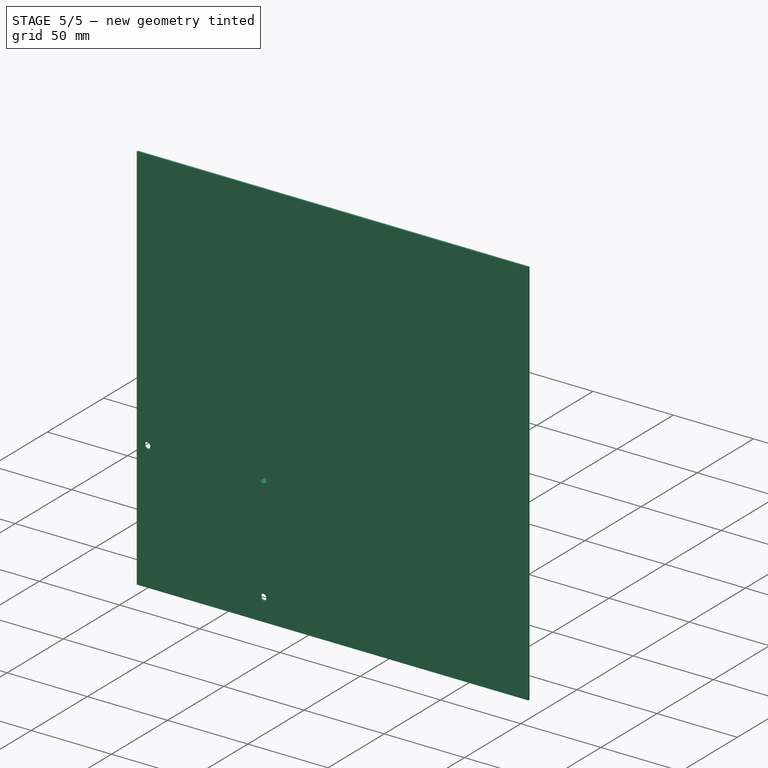
[diagram: stage 5 of 5 — iso view after this stage's code; geometry added in this stage tinted green]
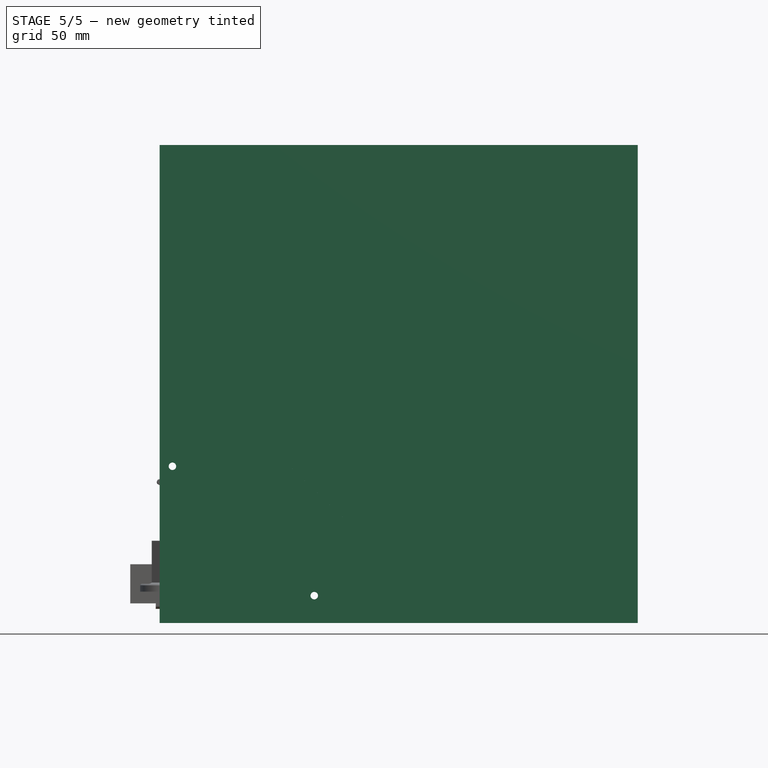
[diagram: stage 5 of 5 — front view after this stage's code; geometry added in this stage tinted green]
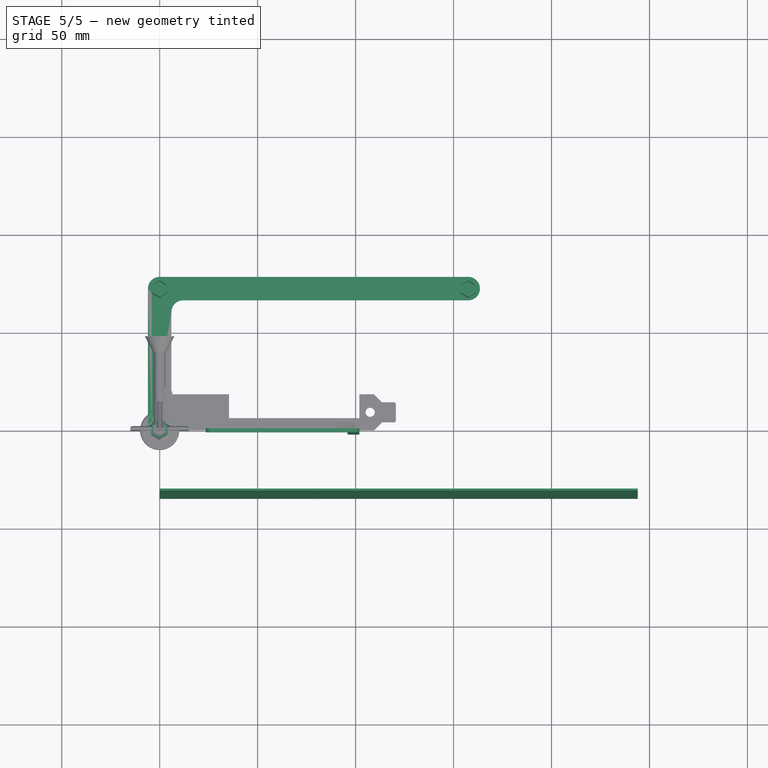
[diagram: stage 5 of 5 — top view after this stage's code; geometry added in this stage tinted green]
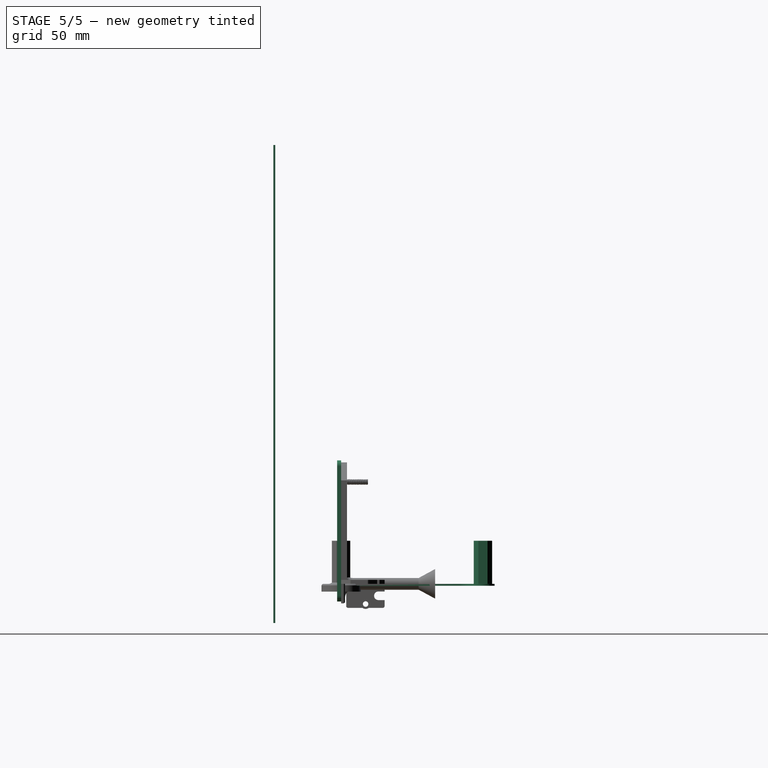
[diagram: stage 5 of 5 — right view after this stage's code; geometry added in this stage tinted green]
FEATURE [Sketcher::SketchObject] Sketch
  MapMode = 5
  Support = -> [XY_Plane]
  sketch-geometry (42):
    g0: LineSegment StartX=3.2 StartY=1.84752 StartZ=0 EndX=3e-12 EndY=3.69504 EndZ=0
    g1: LineSegment StartX=3e-12 StartY=3.69504 StartZ=0 EndX=-3.2 EndY=1.84752 EndZ=0
    g2: LineSegment StartX=-3.2 StartY=1.84752 StartZ=0 EndX=-3.2 EndY=-1.84752 EndZ=0
    g3: LineSegment StartX=-3.2 StartY=-1.84752 StartZ=0 EndX=3e-12 EndY=-3.69504 EndZ=0
    g4: LineSegment StartX=3e-12 StartY=-3.69504 StartZ=0 EndX=3.2 EndY=-1.84752 EndZ=0
    g5: LineSegment StartX=3.2 StartY=-1.84752 StartZ=0 EndX=3.2 EndY=1.84752 EndZ=0
    g6: Circle [constr] CenterX=0 CenterY=0 CenterZ=0 NormalX=0 NormalY=0 NormalZ=1 AngleXU=0 Radius=3.69504
    g7: LineSegment StartX=4.06599 StartY=2.3475 StartZ=0 EndX=0 EndY=4.695 EndZ=0
    g8: LineSegment StartX=0 StartY=4.695 StartZ=0 EndX=-4.06599 EndY=2.3475 EndZ=0
    g9: LineSegment StartX=-4.06599 StartY=2.3475 StartZ=0 EndX=-4.06599 EndY=-2.3475 EndZ=0
    g10: LineSegment StartX=-4.06599 StartY=-2.3475 StartZ=0 EndX=0 EndY=-4.695 EndZ=0
    g11: LineSegment StartX=0 StartY=-4.695 StartZ=0 EndX=4.06599 EndY=-2.3475 EndZ=0
    g12: LineSegment StartX=4.06599 StartY=-2.3475 StartZ=0 EndX=4.06599 EndY=2.3475 EndZ=0
    g13: Circle [constr] CenterX=0 CenterY=0 CenterZ=0 NormalX=0 NormalY=0 NormalZ=1 AngleXU=0 Radius=4.695
    g14: LineSegment StartX=3.2 StartY=74.2375 StartZ=0 EndX=0 EndY=76.085 EndZ=0
    g15: LineSegment StartX=0 StartY=76.085 StartZ=0 EndX=-3.2 EndY=74.2375 EndZ=0
    g16: LineSegment StartX=-3.2 StartY=74.2375 StartZ=0 EndX=-3.2 EndY=70.5425 EndZ=0
    g17: LineSegment StartX=-3.2 StartY=70.5425 StartZ=0 EndX=0 EndY=68.695 EndZ=0
    g18: LineSegment StartX=0 StartY=68.695 StartZ=0 EndX=3.2 EndY=70.5425 EndZ=0
    g19: LineSegment StartX=3.2 StartY=70.5425 StartZ=0 EndX=3.2 EndY=74.2375 EndZ=0
    g20: Circle [constr] CenterX=0 CenterY=72.39 CenterZ=0 NormalX=0 NormalY=0 NormalZ=1 AngleXU=0 Radius=3.69504
    g21: LineSegment StartX=4.06599 StartY=74.7375 StartZ=0 EndX=0 EndY=77.085 EndZ=0
    g22: LineSegment StartX=0 StartY=77.085 StartZ=0 EndX=-4.06599 EndY=74.7375 EndZ=0
    g23: LineSegment StartX=-4.06599 StartY=74.7375 StartZ=0 EndX=-4.06599 EndY=70.0425 EndZ=0
    g24: LineSegment StartX=-4.06599 StartY=70.0425 StartZ=0 EndX=0 EndY=67.695 EndZ=0
    g25: LineSegment StartX=0 StartY=67.695 StartZ=0 EndX=4.06599 EndY=70.0425 EndZ=0
    g26: LineSegment StartX=4.06599 StartY=70.0425 StartZ=0 EndX=4.06599 EndY=74.7375 EndZ=0
    g27: Circle [constr] CenterX=0 CenterY=72.39 CenterZ=0 NormalX=0 NormalY=0 NormalZ=1 AngleXU=0 Radius=4.695
    g28: LineSegment StartX=160.68 StartY=74.2375 StartZ=0 EndX=157.48 EndY=76.085 EndZ=0
    g29: LineSegment StartX=157.48 StartY=76.085 StartZ=0 EndX=154.28 EndY=74.2375 EndZ=0
    g30: LineSegment StartX=154.28 StartY=74.2375 StartZ=0 EndX=154.28 EndY=70.5425 EndZ=0
    g31: LineSegment StartX=154.28 StartY=70.5425 StartZ=0 EndX=157.48 EndY=68.695 EndZ=0
    g32: LineSegment StartX=157.48 StartY=68.695 StartZ=0 EndX=160.68 EndY=70.5425 EndZ=0
    g33: LineSegment StartX=160.68 StartY=70.5425 StartZ=0 EndX=160.68 EndY=74.2375 EndZ=0
    g34: Circle [constr] CenterX=157.48 CenterY=72.39 CenterZ=0 NormalX=0 NormalY=0 NormalZ=1 AngleXU=0 Radius=3.69504
    g35: LineSegment StartX=161.546 StartY=74.7375 StartZ=0 EndX=157.48 EndY=77.085 EndZ=0
    g36: LineSegment StartX=157.48 StartY=77.085 StartZ=0 EndX=153.414 EndY=74.7375 EndZ=0
    g37: LineSegment StartX=153.414 StartY=74.7375 StartZ=0 EndX=153.414 EndY=70.0425 EndZ=0
    g38: LineSegment StartX=153.414 StartY=70.0425 StartZ=0 EndX=157.48 EndY=67.695 EndZ=0
    g39: LineSegment StartX=157.48 StartY=67.695 StartZ=0 EndX=161.546 EndY=70.0425 EndZ=0
    g40: LineSegment StartX=161.546 StartY=70.0425 StartZ=0 EndX=161.546 EndY=74.7375 EndZ=0
    g41: Circle [constr] CenterX=157.48 CenterY=72.39 CenterZ=0 NormalX=0 NormalY=0 NormalZ=1 AngleXU=0 Radius=4.695
  constraints (94):
    c: Coincident(g0,g1)
    c: Coincident(g1,g2)
    c: Coincident(g2,g3)
    c: Coincident(g3,g4)
    c: Coincident(g4,g5)
    c: Coincident(g5,g0)
    c: Equal(g0, g1-g5) x5
    c: PointOnObject(g0,g6)
    c: PointOnObject(g1,g6)
    c: PointOnObject(g2,g6)
    c: PointOnObject(g3,g6)
    c: PointOnObject(g4,g6)
    c: PointOnObject(g5,g6)
    c: Coincident(g6,g-1)
    c: Vertical(g5)
    c: Distance(g1,g5) = 6.4
    c: Coincident(g7,g8)
    c: Coincident(g8,g9)
    c: Coincident(g9,g10)
    c: Coincident(g10,g11)
    c: Coincident(g11,g12)
    c: Coincident(g12,g7)
    c: Equal(g7, g8-g12) x5
    c: PointOnObject(g7,g13)
    c: PointOnObject(g8,g13)
    c: PointOnObject(g9,g13)
    c: PointOnObject(g10,g13)
    c: PointOnObject(g11,g13)
    c: PointOnObject(g12,g13)
    c: Coincident(g13,g-1)
    c: Vertical(g12)
    c: Coincident(g14,g15)
    c: Coincident(g15,g16)
    c: Coincident(g16,g17)
    c: Coincident(g17,g18)
    c: Coincident(g18,g19)
    c: Coincident(g19,g14)
    c: Equal(g14, g15-g19) x5
    c: PointOnObject(g14,g20)
    c: PointOnObject(g15,g20)
    c: PointOnObject(g16,g20)
    c: PointOnObject(g17,g20)
    c: PointOnObject(g18,g20)
    c: PointOnObject(g19,g20)
    c: Vertical(g19)
    c: Distance(g15,g19) = 6.4
    c: Coincident(g21,g22)
    c: Coincident(g22,g23)
    c: Coincident(g23,g24)
    c: Coincident(g24,g25)
    c: Coincident(g25,g26)
    c: Coincident(g26,g21)
    c: Equal(g21, g22-g26) x5
    c: PointOnObject(g21,g27)
    c: PointOnObject(g22,g27)
    c: PointOnObject(g23,g27)
    c: PointOnObject(g24,g27)
    c: PointOnObject(g25,g27)
    c: PointOnObject(g26,g27)
    c: Vertical(g26)
    c: Coincident(g28,g29)
    c: Coincident(g29,g30)
    c: Coincident(g30,g31)
    c: Coincident(g31,g32)
    c: Coincident(g32,g33)
    c: Coincident(g33,g28)
    c: Equal(g28, g29-g33) x5
    c: PointOnObject(g28,g34)
    c: PointOnObject(g29,g34)
    c: PointOnObject(g30,g34)
    c: PointOnObject(g31,g34)
    c: PointOnObject(g32,g34)
    c: PointOnObject(g33,g34)
    c: Vertical(g33)
    c: Distance(g29,g33) = 6.4
    c: Coincident(g35,g36)
    c: Coincident(g36,g37)
    c: Coincident(g37,g38)
    c: Coincident(g38,g39)
    c: Coincident(g39,g40)
    c: Coincident(g40,g35)
    c: Equal(g35, g36-g40) x5
    c: PointOnObject(g35,g41)
    c: PointOnObject(g36,g41)
    c: PointOnObject(g37,g41)
    c: PointOnObject(g38,g41)
    c: PointOnObject(g39,g41)
    c: PointOnObject(g40,g41)
    c: Vertical(g40)
    c: Radius(g27) = 4.695
    c: Radius(g41) = 4.695
    c: Radius(g13) = 4.695
    c: Coincident(g20,g27)
    c: Coincident(g34,g41)
FEATURE [Sketcher::SketchObject] Sketch001
  MapMode = 5
  Support = -> [XY_Plane]
  sketch-geometry (4):
    g0: LineSegment StartX=0 StartY=0 StartZ=0 EndX=157.48 EndY=0 EndZ=0
    g1: LineSegment StartX=157.48 StartY=0 StartZ=0 EndX=157.48 EndY=72.39 EndZ=0
    g2: LineSegment StartX=157.48 StartY=72.39 StartZ=0 EndX=0 EndY=72.39 EndZ=0
    g3: LineSegment StartX=0 StartY=72.39 StartZ=0 EndX=0 EndY=0 EndZ=0
  constraints (11):
    c: Coincident(g0,g1)
    c: Coincident(g1,g2)
    c: Coincident(g2,g3)
    c: Coincident(g3,g0)
    c: Horizontal(g0)
    c: Horizontal(g2)
    c: Vertical(g1)
    c: Vertical(g3)
    c: Coincident(g0,g-1)
    c: Distance(g2) = 157.48
    c: Distance(g3) = 72.39
FEATURE [Sketcher::SketchObject] Sketch002
  ExternalGeometry = -> [Sketch001]
  MapMode = 5
  Support = -> [XY_Plane]
  sketch-geometry (8):
    g0: LineSegment StartX=6 StartY=7.6147e-08 StartZ=0 EndX=6 EndY=60.39 EndZ=0
    g1: LineSegment StartX=12 StartY=66.39 StartZ=0 EndX=157.48 EndY=66.39 EndZ=0
    g2: LineSegment StartX=157.48 StartY=78.39 StartZ=0 EndX=0 EndY=78.39 EndZ=0
    g3: LineSegment StartX=-6 StartY=72.39 StartZ=0 EndX=-6 EndY=0 EndZ=0
    g4: ArcOfCircle CenterX=0 CenterY=0 CenterZ=0 NormalX=0 NormalY=0 NormalZ=1 AngleXU=0 Radius=6 StartAngle=3.14159 EndAngle=6.28319
    g5: ArcOfCircle CenterX=12 CenterY=60.39 CenterZ=0 NormalX=0 NormalY=0 NormalZ=1 AngleXU=0 Radius=6 StartAngle=1.5708 EndAngle=3.14159
    g6: ArcOfCircle CenterX=0 CenterY=72.39 CenterZ=0 NormalX=0 NormalY=0 NormalZ=1 AngleXU=0 Radius=6 StartAngle=1.5708 EndAngle=3.14159
    g7: ArcOfCircle CenterX=157.48 CenterY=72.39 CenterZ=0 NormalX=0 NormalY=0 NormalZ=1 AngleXU=0 Radius=6 StartAngle=4.71239 EndAngle=7.85398
  constraints (19):
    c: Tangent(g3,g4) = -1.5708
    c: Coincident(g4,g-1)
    c: Tangent(g0,g5) = 1.5708
    c: Tangent(g1,g5) = 1.5708
    c: Tangent(g3,g6) = -1.5708
    c: Tangent(g2,g6) = -1.5708
    c: Coincident(g6,g-3)
    c: Equal(g6,g5)
    c: Equal(g4,g6)
    c: Vertical(g0)
    c: Tangent(g1,g7) = -1.5708
    c: Horizontal(g1)
    c: Coincident(g7,g2)
    c: Tangent(g7,g2)
    c: Coincident(g7,g-4)
    c: Coincident(g4,g0)
    c: Horizontal(g2)
    c: Tangent(g4,g0)
    c: Radius(g4) = 6
FEATURE [PartDesign::Pad] Pad
  Length = 1
  Length2 = 100
  Profile = -> Sketch002
  Reversed = true
  Type = 0
FEATURE [PartDesign::Pad] Pad001
  BaseFeature = -> Pad
  Length = 22
  Length2 = 100
  Profile = -> Sketch
  Type = 0
FEATURE [PartDesign::Plane] DatumPlane  label="MoboSurface"
  AttachmentOffset = pos=(0,0,33.6) rot=(0,0,1;0rad)
  MapMode = 5
  Placement = pos=(0,-33.6,-3e-12) rot=(1,0,0;1.5708rad)
  Support = -> [XZ_Plane002]
  expr: AttachmentOffset.Base.z = -18.399999999999999 + 52
FEATURE [Sketcher::SketchObject] Sketch009  label="Mobo"
  MapMode = 5
  Placement = pos=(0,-33.6,-3e-12) rot=(0,0.707107,0.707107;3.14159rad)
  Support = -> [DatumPlane]
  sketch-geometry (7):
    g0: LineSegment StartX=0 StartY=-20 StartZ=0 EndX=-244 EndY=-20 EndZ=0
    g1: LineSegment StartX=-244 StartY=-20 StartZ=0 EndX=-244 EndY=224 EndZ=0
    g2: LineSegment StartX=-244 StartY=224 StartZ=0 EndX=0 EndY=224 EndZ=0
    g3: LineSegment StartX=0 StartY=224 StartZ=0 EndX=0 EndY=-20 EndZ=0
    g4: Circle CenterX=-78.9 CenterY=-6.03 CenterZ=0 NormalX=0 NormalY=0 NormalZ=1 AngleXU=0 Radius=1.905
    g5: Circle CenterX=-78.9 CenterY=60.01 CenterZ=0 NormalX=0 NormalY=0 NormalZ=1 AngleXU=0 Radius=1.905
    g6: Circle CenterX=-6.51 CenterY=60.01 CenterZ=0 NormalX=0 NormalY=0 NormalZ=1 AngleXU=0 Radius=1.905
  constraints (21):
    c: Coincident(g0,g1)
    c: Coincident(g1,g2)
    c: Coincident(g2,g3)
    c: Coincident(g3,g0)
    c: Horizontal(g0)
    c: Horizontal(g2)
    c: Vertical(g1)
    c: Vertical(g3)
    c: Equal(g2,g1)
    c: Distance(g0) = 244
    c: DistanceX(g0) = 0
    c: DistanceY(g0) = -20
    c: Radius(g4) = 1.905
    c: Distance(g4,g1) = 165.1
    c: Distance(g4,g0) = 13.97
    c: Equal(g4,g5) = 1.905
    c: Distance(g5,g0) = 80.01
    c: DistanceX(g4,g5) = 0
    c: Distance(g6,g1) = 237.49
    c: DistanceY(g5,g6) = 0
    c: Equal(g6,g5)
FEATURE [Sketcher::SketchObject] Sketch010
  ExternalGeometry = -> [Sketch009]
  MapMode = 5
  Placement = pos=(0,-33.6,-3e-12) rot=(0,0.707107,0.707107;3.14159rad)
  Support = -> [DatumPlane]
  sketch-geometry (7):
    g0: LineSegment StartX=0 StartY=-20 StartZ=0 EndX=-244 EndY=-20 EndZ=0
    g1: LineSegment StartX=-244 StartY=-20 StartZ=0 EndX=-244 EndY=224 EndZ=0
    g2: LineSegment StartX=-244 StartY=224 StartZ=0 EndX=0 EndY=224 EndZ=0
    g3: LineSegment StartX=0 StartY=224 StartZ=0 EndX=0 EndY=-20 EndZ=0
    g4: Circle CenterX=-78.9 CenterY=60.01 CenterZ=0 NormalX=0 NormalY=0 NormalZ=1 AngleXU=0 Radius=1.905
    g5: Circle CenterX=-6.51 CenterY=60.01 CenterZ=0 NormalX=0 NormalY=0 NormalZ=1 AngleXU=0 Radius=1.905
    g6: Circle CenterX=-78.9 CenterY=-6.03 CenterZ=0 NormalX=0 NormalY=0 NormalZ=1 AngleXU=0 Radius=1.905
  constraints (16):
    c: Coincident(g0,g1)
    c: Coincident(g1,g2)
    c: Coincident(g2,g3)
    c: Coincident(g3,g0)
    c: Horizontal(g0)
    c: Horizontal(g2)
    c: Vertical(g1)
    c: Vertical(g3)
    c: Coincident(g0,g-4)
    c: Coincident(g1,g-3)
    c: Coincident(g4,g-5)
    c: Equal(g4,g-5)
    c: Coincident(g5,g-6)
    c: Coincident(g6,g-7)
    c: Equal(g6,g-7)
    c: Equal(g5,g-6)
FEATURE [PartDesign::Pad] Pad005
  Length = 1
  Length2 = 100
  Placement = pos=(0,-33.6,0) rot=(1,0,0;1.5708rad)
  Profile = -> Sketch010
  Reversed = true
  Type = 0
FEATURE [PartDesign::Pad] Pad006
  BaseFeature = -> Pocket
  Length = 2
  Length2 = 100
  Profile = -> Sketch011
  Type = 0
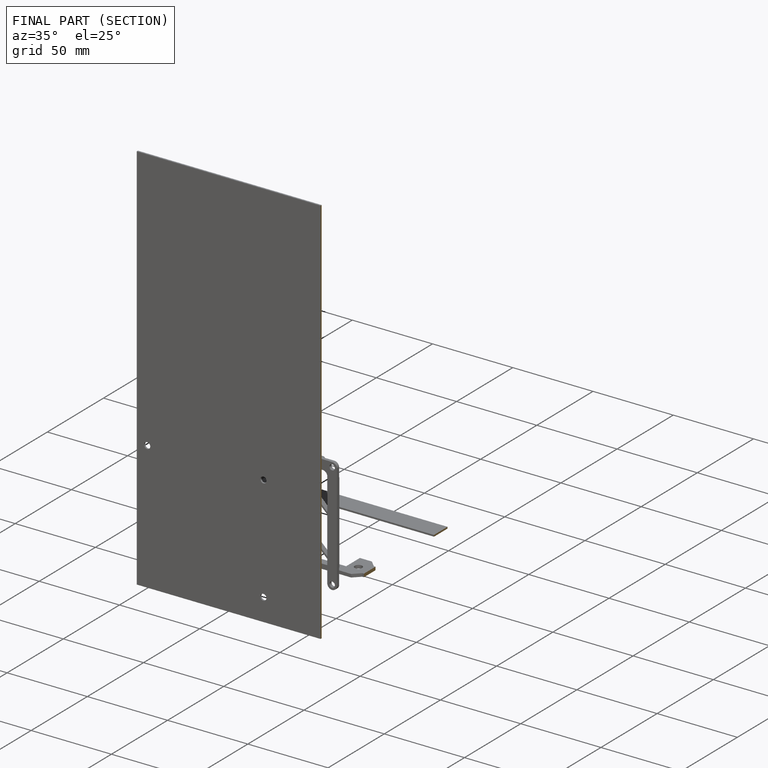
[diagram: finished part — half-section view (interior)]
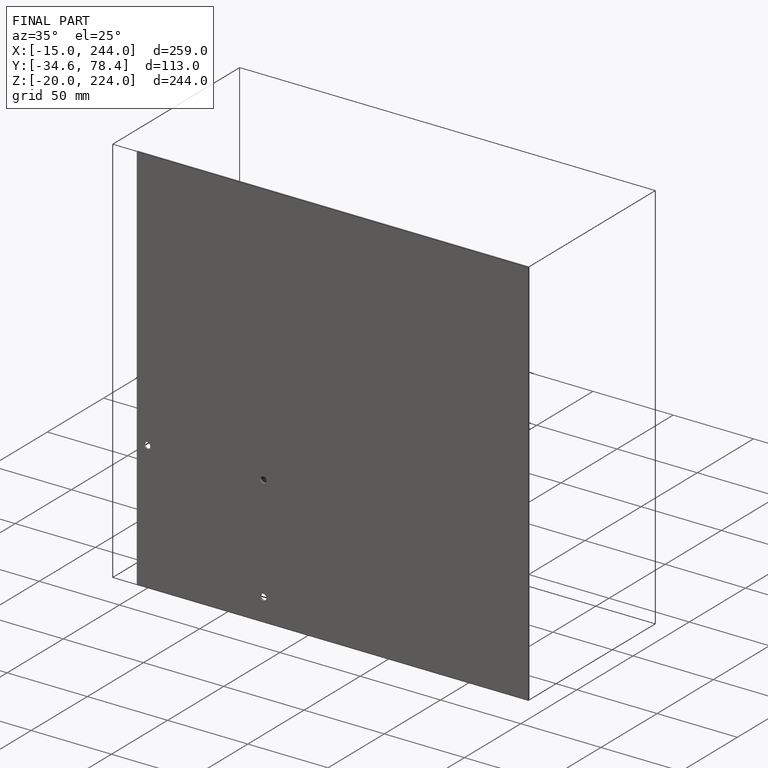
[diagram: finished part — iso view with bounding-box wireframe]
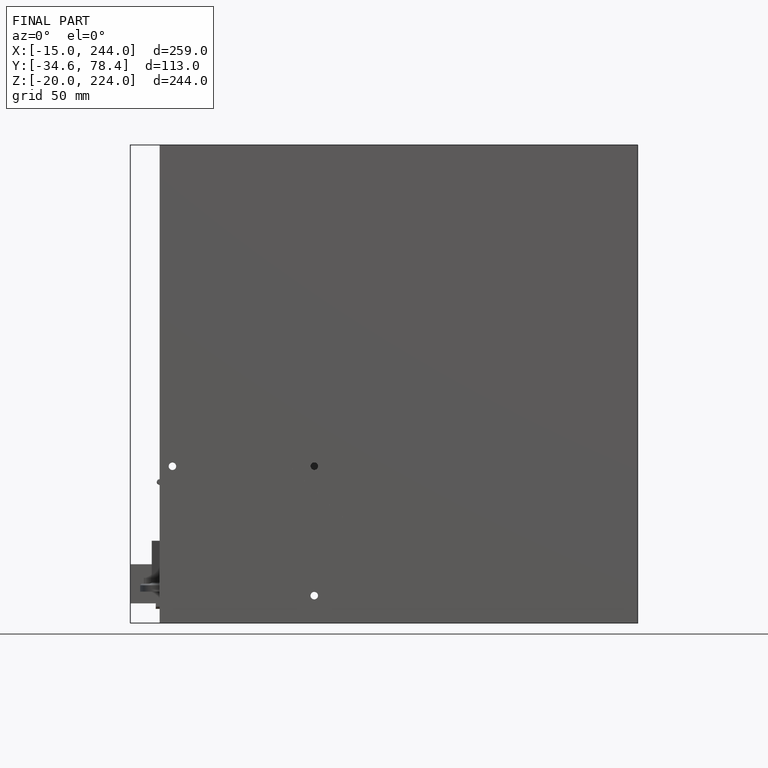
[diagram: finished part — front view with bounding-box wireframe]
